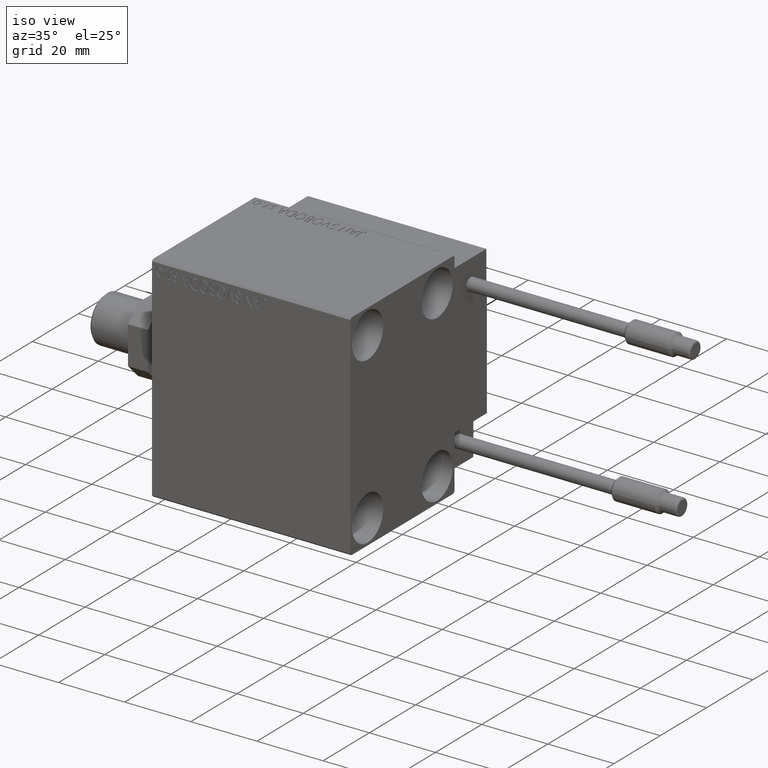
[diagram: clean part render]
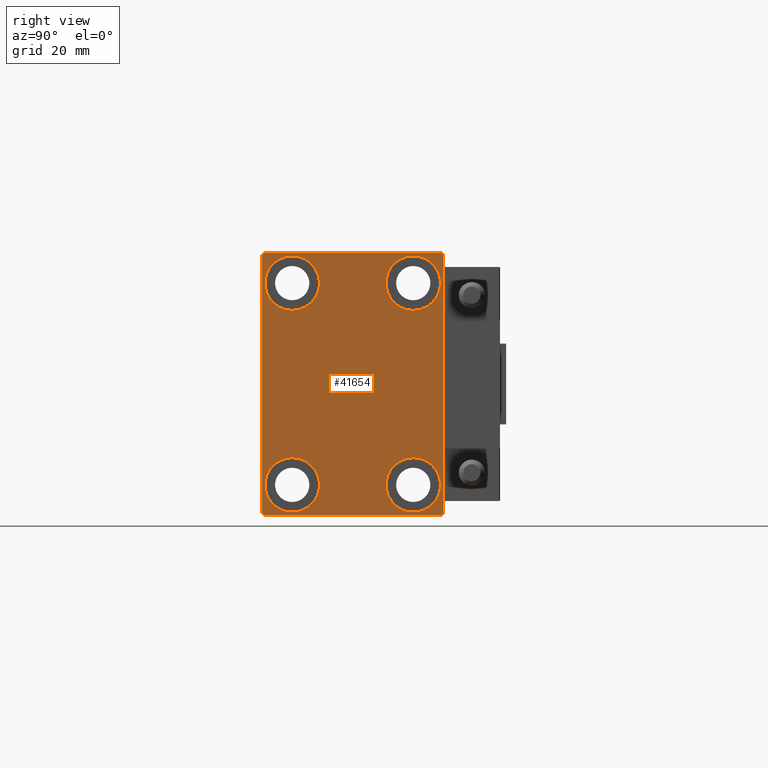
[diagram: tour spotlight — one face highlighted and labeled with its STEP entity id]
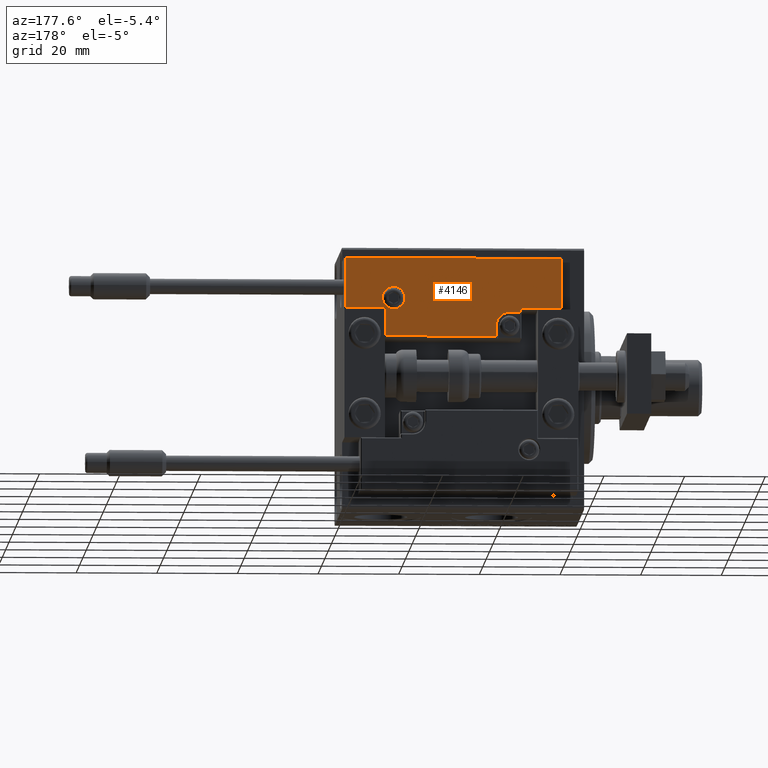
[diagram: tour spotlight — one face highlighted and labeled with its STEP entity id]
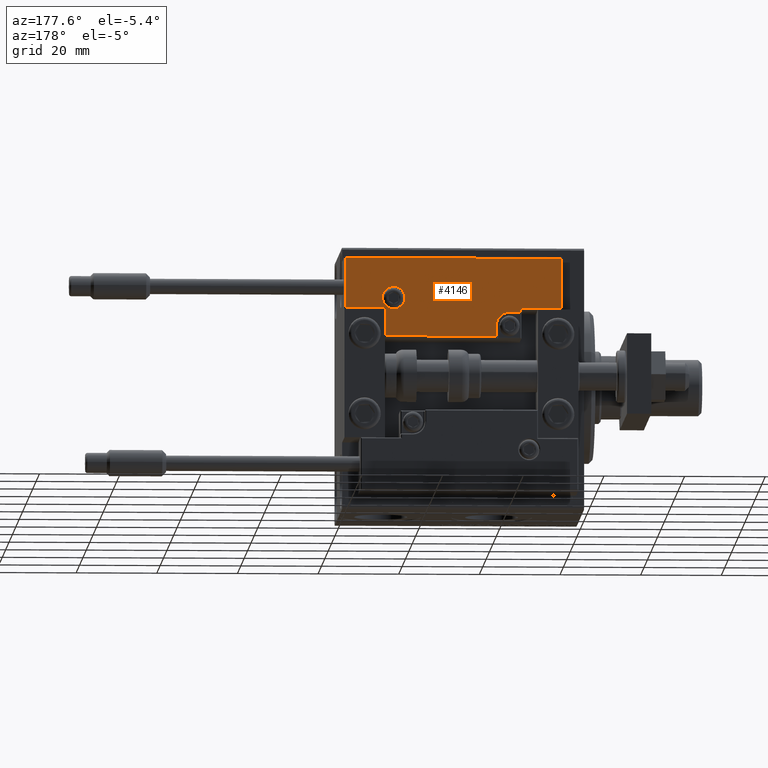
[diagram: tour spotlight — one face highlighted and labeled with its STEP entity id]
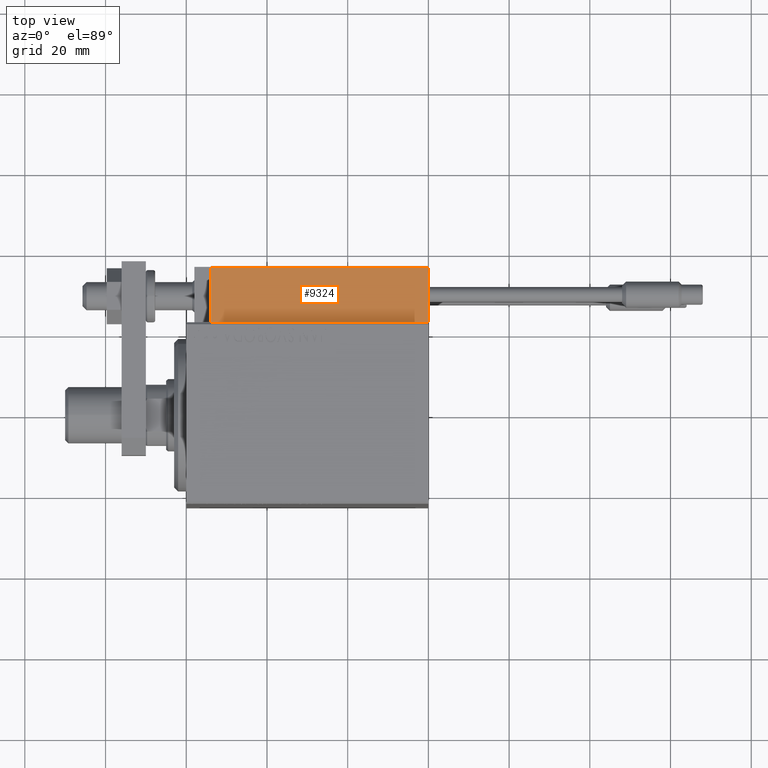
[diagram: tour spotlight — one face highlighted and labeled with its STEP entity id]
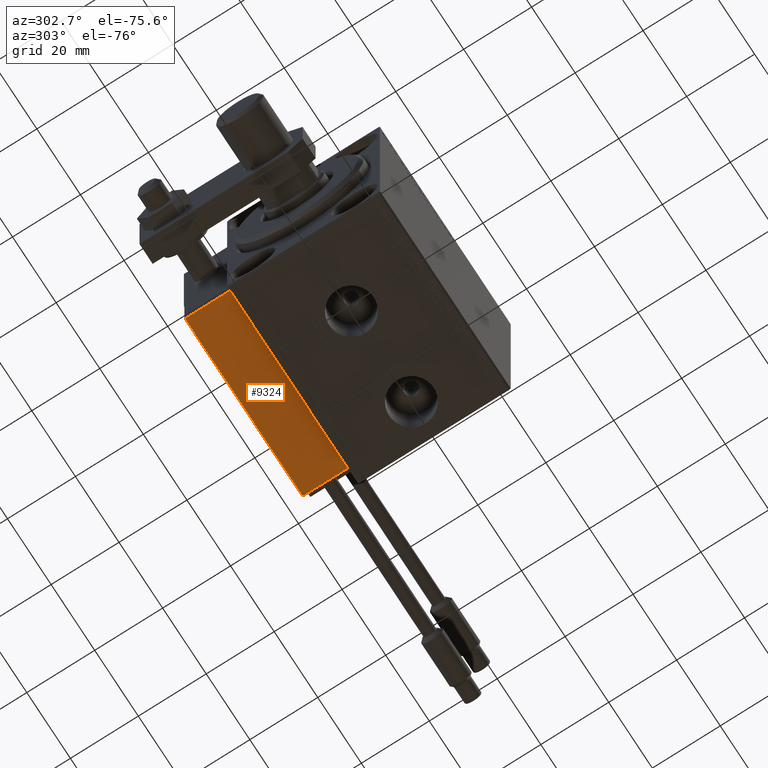
[diagram: tour spotlight — one face highlighted and labeled with its STEP entity id]
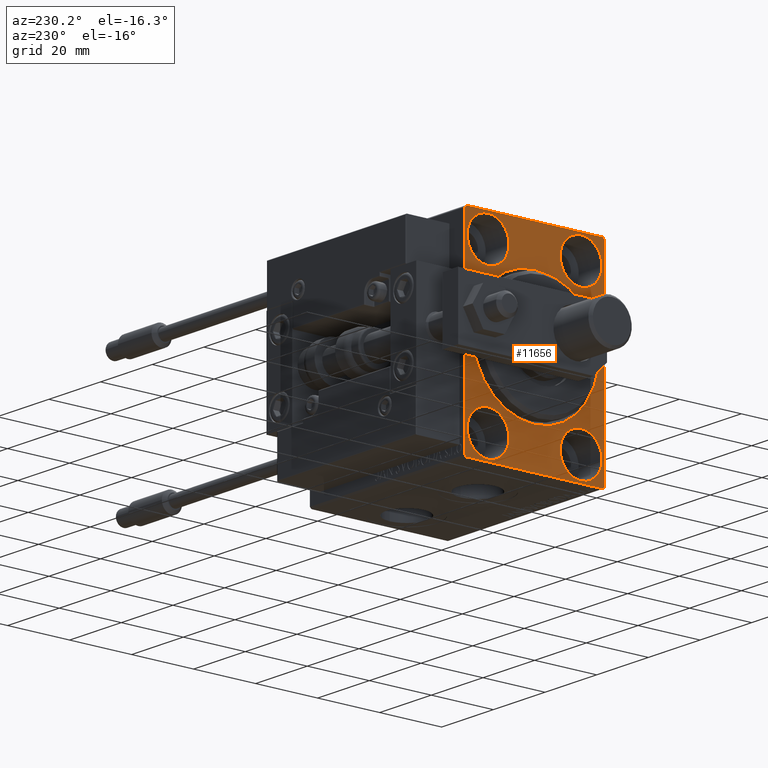
[diagram: tour spotlight — one face highlighted and labeled with its STEP entity id]
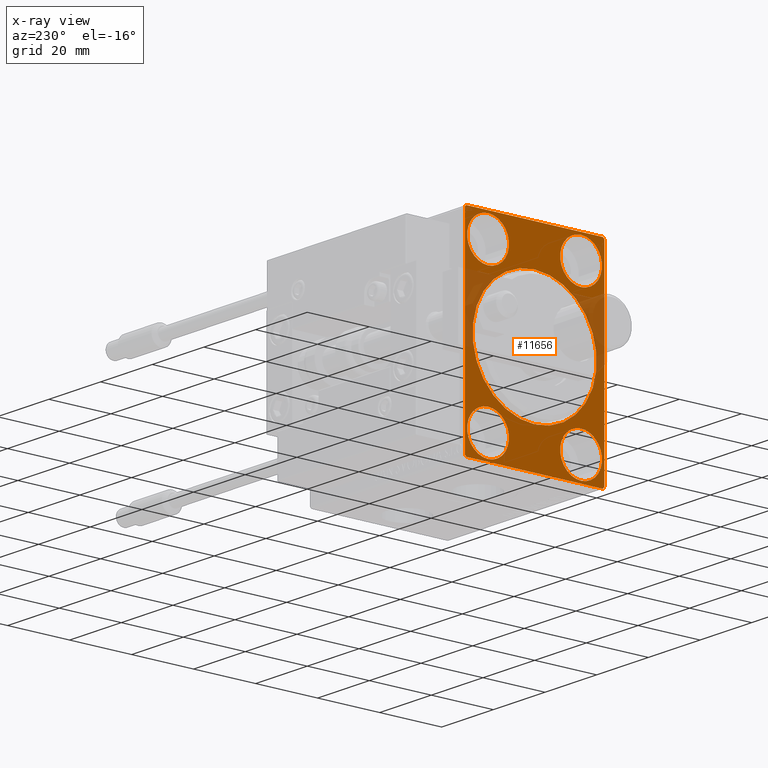
[diagram: x-ray of the same camera — body ghosted, this tour face saturated]
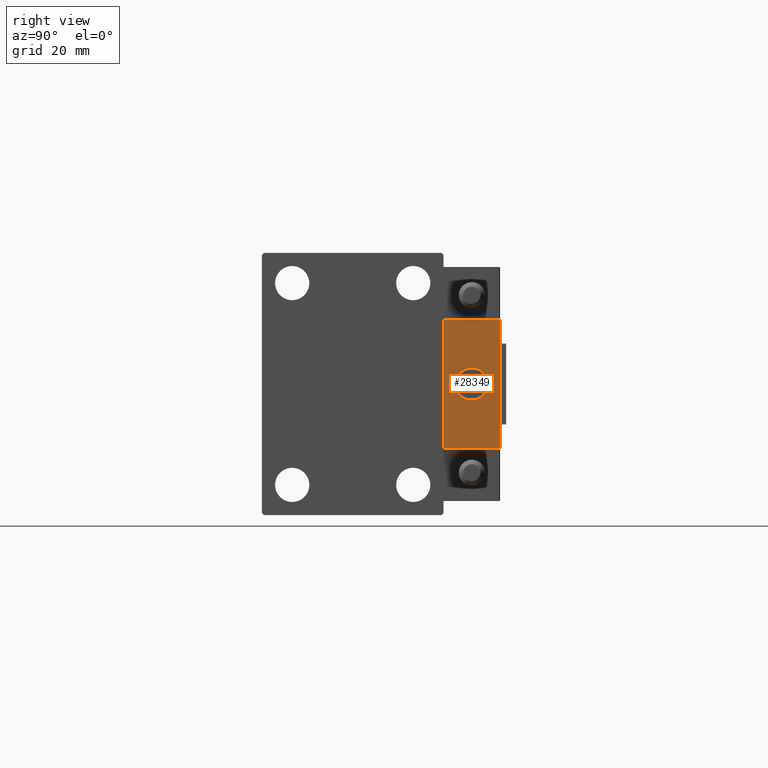
[diagram: tour spotlight — one face highlighted and labeled with its STEP entity id]
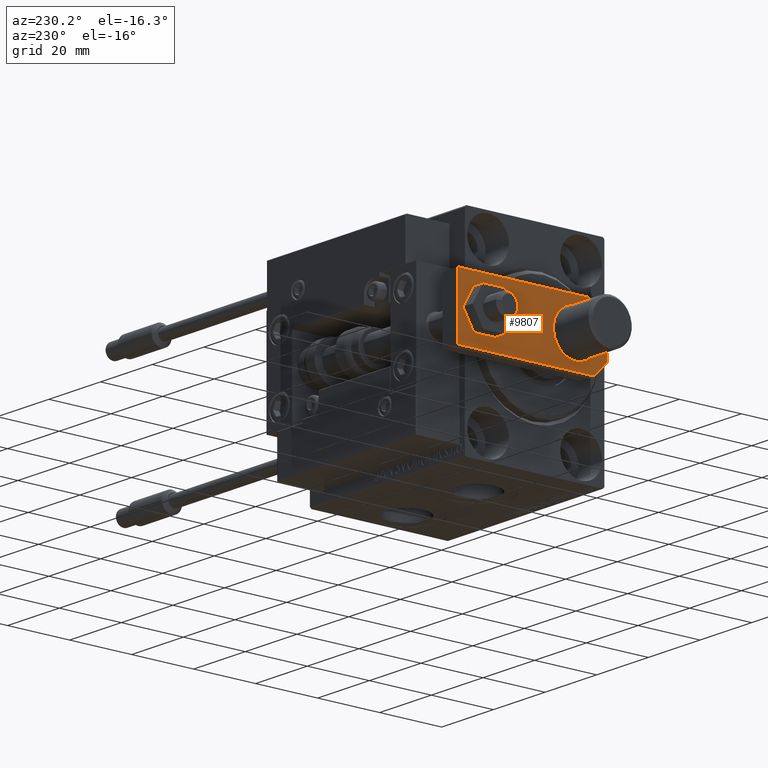
[diagram: tour spotlight — one face highlighted and labeled with its STEP entity id]
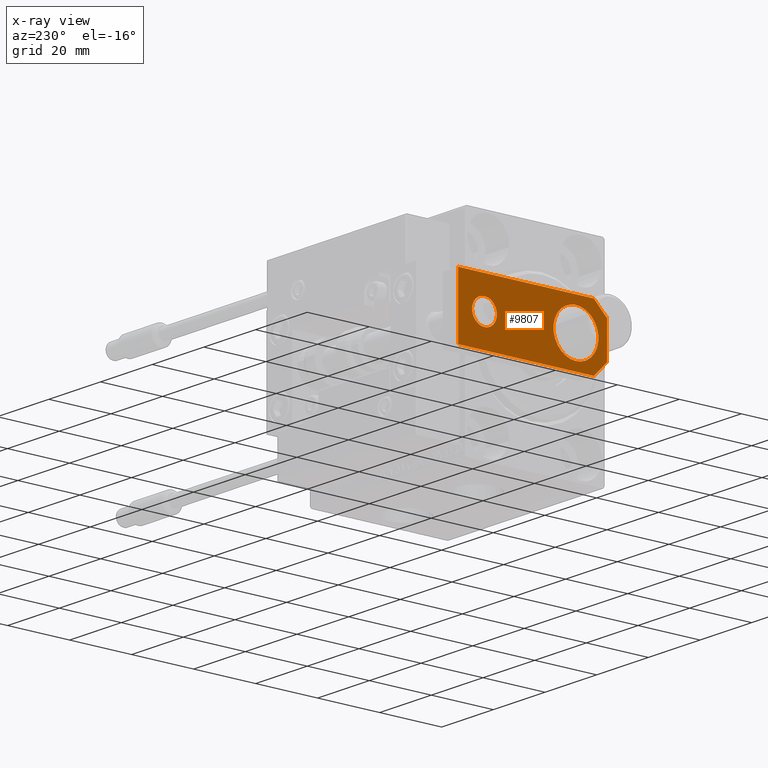
[diagram: x-ray of the same camera — body ghosted, this tour face saturated]
A machine part: a face-by-face anatomy tour. The part has 1318 B-rep faces; the first image is the clean iso view, then the 8 largest visible faces are spotlighted one at a time (largest first), each with its STEP entity span.

Face 1 — right view, entity #41654. In plain terms, the highlighted planar face has unit normal (1, 0, 0).
Definition (entity closure, byte-faithful):
#66 = DIRECTION ( 'NONE',  ( -0.000000000000000000, 0.7071067811865376918, 0.7071067811865574537 ) ) ;
#935 = CARTESIAN_POINT ( 'NONE',  ( 60.00000000000000000, 15.00000000000000355, 25.00000000000000000 ) ) ;
#1497 = CARTESIAN_POINT ( 'NONE',  ( 60.00000000000000000, 14.99999999999999645, -18.25000000000000355 ) ) ;
#1501 = CARTESIAN_POINT ( 'NONE',  ( 60.00000000000000000, -27.25000000000000000, 27.25000000000000000 ) ) ;
#1721 = CARTESIAN_POINT ( 'NONE',  ( 60.00000000000000000, 22.50000000000000000, -32.50000000000000711 ) ) ;
#1789 = DIRECTION ( 'NONE',  ( -1.000000000000000000, -0.000000000000000000, -0.000000000000000000 ) ) ;
#2645 = LINE ( 'NONE', #22538, #8430 ) ;
#2699 = CARTESIAN_POINT ( 'NONE',  ( 60.00000000000000000, -22.50000000000000711, -32.50000000000000711 ) ) ;
#2864 = EDGE_CURVE ( 'NONE', #45222, #18403, #28966, .T. ) ;
#4200 = CARTESIAN_POINT ( 'NONE',  ( 60.00000000000000000, 15.00000000000000355, 25.00000000000000000 ) ) ;
#4335 = AXIS2_PLACEMENT_3D ( 'NONE', #39829, #31062, #39570 ) ;
#4920 = CIRCLE ( 'NONE', #33811, 6.749999999999999112 ) ;
#5185 = CIRCLE ( 'NONE', #4335, 6.749999999999999112 ) ;
#5365 = EDGE_CURVE ( 'NONE', #29262, #49479, #5185, .T. ) ;
#5546 = CIRCLE ( 'NONE', #30289, 6.749999999999999112 ) ;
#7878 = DIRECTION ( 'NONE',  ( 0.000000000000000000, 0.000000000000000000, 1.000000000000000000 ) ) ;
#7897 = EDGE_CURVE ( 'NONE', #10067, #38806, #16835, .T. ) ;
#8076 = VECTOR ( 'NONE', #21138, 1000.000000000000114 ) ;
#8430 = VECTOR ( 'NONE', #33661, 1000.000000000000000 ) ;
#8554 = VECTOR ( 'NONE', #36466, 1000.000000000000000 ) ;
#9023 = ORIENTED_EDGE ( 'NONE', *, *, #24847, .T. ) ;
#9526 = CARTESIAN_POINT ( 'NONE',  ( 60.00000000000000000, -15.00000000000000355, -31.75000000000000000 ) ) ;
#10067 = VERTEX_POINT ( 'NONE', #17874 ) ;
#11206 = VECTOR ( 'NONE', #11955, 999.9999999999998863 ) ;
#11323 = AXIS2_PLACEMENT_3D ( 'NONE', #36939, #1789, #44434 ) ;
#11611 = ORIENTED_EDGE ( 'NONE', *, *, #19442, .T. ) ;
#11731 = CARTESIAN_POINT ( 'NONE',  ( 60.00000000000000000, 15.00000000000000355, 31.75000000000000000 ) ) ;
#11743 = DIRECTION ( 'NONE',  ( -1.000000000000000000, -0.000000000000000000, -0.000000000000000000 ) ) ;
#11955 = DIRECTION ( 'NONE',  ( -0.000000000000000000, -0.7071067811865425767, 0.7071067811865525687 ) ) ;
#12192 = VERTEX_POINT ( 'NONE', #36288 ) ;
#12881 = VERTEX_POINT ( 'NONE', #27400 ) ;
#13527 = CARTESIAN_POINT ( 'NONE',  ( 60.00000000000000000, -21.99999999999999289, 32.49999999999999289 ) ) ;
#14446 = VECTOR ( 'NONE', #66, 999.9999999999998863 ) ;
#14616 = CARTESIAN_POINT ( 'NONE',  ( 60.00000000000000000, -14.99999999999999645, 25.00000000000000000 ) ) ;
#16835 = LINE ( 'NONE', #40351, #8554 ) ;
#16945 = EDGE_CURVE ( 'NONE', #12192, #10067, #32618, .T. ) ;
#16959 = CARTESIAN_POINT ( 'NONE',  ( 60.00000000000000000, 21.99999999999998579, -32.50000000000000711 ) ) ;
#17348 = VERTEX_POINT ( 'NONE', #25321 ) ;
#17640 = ORIENTED_EDGE ( 'NONE', *, *, #24397, .T. ) ;
#17836 = FACE_BOUND ( 'NONE', #45384, .T. ) ;
#17874 = CARTESIAN_POINT ( 'NONE',  ( 60.00000000000000000, 21.99999999999999289, 32.50000000000000000 ) ) ;
#18403 = VERTEX_POINT ( 'NONE', #24498 ) ;
#18538 = EDGE_LOOP ( 'NONE', ( #25346, #28140 ) ) ;
#18853 = ORIENTED_EDGE ( 'NONE', *, *, #36944, .T. ) ;
#19442 = EDGE_CURVE ( 'NONE', #18403, #45222, #5546, .T. ) ;
#19491 = VERTEX_POINT ( 'NONE', #16959 ) ;
#20015 = CARTESIAN_POINT ( 'NONE',  ( 60.00000000000000000, -15.00000000000000355, -25.00000000000000000 ) ) ;
#20778 = AXIS2_PLACEMENT_3D ( 'NONE', #21710, #37211, #22213 ) ;
#20916 = VERTEX_POINT ( 'NONE', #36164 ) ;
#21138 = DIRECTION ( 'NONE',  ( 0.000000000000000000, -0.7071067811865474617, -0.7071067811865474617 ) ) ;
#21276 = EDGE_CURVE ( 'NONE', #12881, #12192, #44372, .T. ) ;
#21710 = CARTESIAN_POINT ( 'NONE',  ( 60.00000000000000000, 0.000000000000000000, 0.000000000000000000 ) ) ;
#21712 = ORIENTED_EDGE ( 'NONE', *, *, #7897, .T. ) ;
#21870 = ORIENTED_EDGE ( 'NONE', *, *, #49400, .T. ) ;
#22193 = CIRCLE ( 'NONE', #30413, 6.749999999999999112 ) ;
#22206 = DIRECTION ( 'NONE',  ( 0.000000000000000000, 0.000000000000000000, 1.000000000000000000 ) ) ;
#22213 = DIRECTION ( 'NONE',  ( 0.000000000000000000, 0.000000000000000000, -1.000000000000000000 ) ) ;
#22538 = CARTESIAN_POINT ( 'NONE',  ( 60.00000000000000000, -22.50000000000000711, 32.49999999999999289 ) ) ;
#22785 = DIRECTION ( 'NONE',  ( -0.000000000000000000, 0.7071067811865378028, -0.7071067811865573427 ) ) ;
#23207 = ORIENTED_EDGE ( 'NONE', *, *, #2864, .T. ) ;
#23454 = EDGE_CURVE ( 'NONE', #37009, #33739, #32882, .T. ) ;
#23709 = CIRCLE ( 'NONE', #11323, 6.749999999999999112 ) ;
#24397 = EDGE_CURVE ( 'NONE', #27177, #19491, #38094, .T. ) ;
#24498 = CARTESIAN_POINT ( 'NONE',  ( 60.00000000000000000, 15.00000000000000355, 18.25000000000000355 ) ) ;
#24847 = EDGE_CURVE ( 'NONE', #38806, #20916, #36902, .T. ) ;
#24879 = CARTESIAN_POINT ( 'NONE',  ( 60.00000000000000000, -14.99999999999999645, 31.75000000000000000 ) ) ;
#25321 = CARTESIAN_POINT ( 'NONE',  ( 60.00000000000000000, -22.50000000000000711, -32.00000000000000711 ) ) ;
#25346 = ORIENTED_EDGE ( 'NONE', *, *, #50819, .T. ) ;
#27153 = CARTESIAN_POINT ( 'NONE',  ( 60.00000000000000000, -22.00000000000002132, -32.50000000000000711 ) ) ;
#27177 = VERTEX_POINT ( 'NONE', #27153 ) ;
#27400 = CARTESIAN_POINT ( 'NONE',  ( 60.00000000000000000, 22.50000000000000000, -31.99999999999999289 ) ) ;
#28140 = ORIENTED_EDGE ( 'NONE', *, *, #23454, .T. ) ;
#28485 = LINE ( 'NONE', #39860, #14446 ) ;
#28779 = DIRECTION ( 'NONE',  ( 0.000000000000000000, 0.000000000000000000, 1.000000000000000000 ) ) ;
#28966 = CIRCLE ( 'NONE', #37242, 6.749999999999999112 ) ;
#29262 = VERTEX_POINT ( 'NONE', #24879 ) ;
#30215 = PLANE ( 'NONE',  #20778 ) ;
#30289 = AXIS2_PLACEMENT_3D ( 'NONE', #935, #36595, #47948 ) ;
#30365 = DIRECTION ( 'NONE',  ( -1.000000000000000000, -0.000000000000000000, -0.000000000000000000 ) ) ;
#30413 = AXIS2_PLACEMENT_3D ( 'NONE', #20015, #48159, #28779 ) ;
#30917 = EDGE_CURVE ( 'NONE', #33054, #43602, #22193, .T. ) ;
#31062 = DIRECTION ( 'NONE',  ( -1.000000000000000000, -0.000000000000000000, -0.000000000000000000 ) ) ;
#31586 = CIRCLE ( 'NONE', #38199, 6.749999999999999112 ) ;
#31852 = DIRECTION ( 'NONE',  ( -1.000000000000000000, -0.000000000000000000, -0.000000000000000000 ) ) ;
#32618 = LINE ( 'NONE', #36231, #11206 ) ;
#32882 = CIRCLE ( 'NONE', #41953, 6.749999999999999112 ) ;
#33054 = VERTEX_POINT ( 'NONE', #9526 ) ;
#33635 = CARTESIAN_POINT ( 'NONE',  ( 60.00000000000000000, -14.99999999999999645, 18.25000000000000355 ) ) ;
#33661 = DIRECTION ( 'NONE',  ( 0.000000000000000000, 0.000000000000000000, -1.000000000000000000 ) ) ;
#33739 = VERTEX_POINT ( 'NONE', #35959 ) ;
#33811 = AXIS2_PLACEMENT_3D ( 'NONE', #14616, #30365, #46125 ) ;
#34020 = EDGE_CURVE ( 'NONE', #49479, #29262, #4920, .T. ) ;
#34022 = EDGE_LOOP ( 'NONE', ( #21712, #9023, #37575, #18853, #17640, #21870, #47829, #50202 ) ) ;
#34477 = VECTOR ( 'NONE', #44619, 1000.000000000000000 ) ;
#34720 = EDGE_LOOP ( 'NONE', ( #11611, #23207 ) ) ;
#35322 = EDGE_LOOP ( 'NONE', ( #46434, #48683 ) ) ;
#35959 = CARTESIAN_POINT ( 'NONE',  ( 60.00000000000000000, 14.99999999999999645, -31.75000000000000000 ) ) ;
#36164 = CARTESIAN_POINT ( 'NONE',  ( 60.00000000000000000, -22.50000000000000711, 31.99999999999999289 ) ) ;
#36231 = CARTESIAN_POINT ( 'NONE',  ( 60.00000000000000000, 27.25000000000014921, 27.24999999999976907 ) ) ;
#36275 = CARTESIAN_POINT ( 'NONE',  ( 60.00000000000000000, 14.99999999999999645, -25.00000000000000000 ) ) ;
#36288 = CARTESIAN_POINT ( 'NONE',  ( 60.00000000000000000, 22.49999999999999289, 31.99999999999999289 ) ) ;
#36466 = DIRECTION ( 'NONE',  ( 0.000000000000000000, -1.000000000000000000, -1.541976423090495387E-16 ) ) ;
#36595 = DIRECTION ( 'NONE',  ( -1.000000000000000000, -0.000000000000000000, -0.000000000000000000 ) ) ;
#36902 = LINE ( 'NONE', #1501, #8076 ) ;
#36939 = CARTESIAN_POINT ( 'NONE',  ( 60.00000000000000000, 14.99999999999999645, -25.00000000000000000 ) ) ;
#36944 = EDGE_CURVE ( 'NONE', #17348, #27177, #39557, .T. ) ;
#37009 = VERTEX_POINT ( 'NONE', #1497 ) ;
#37211 = DIRECTION ( 'NONE',  ( 1.000000000000000000, 0.000000000000000000, 0.000000000000000000 ) ) ;
#37242 = AXIS2_PLACEMENT_3D ( 'NONE', #4200, #31852, #47600 ) ;
#37575 = ORIENTED_EDGE ( 'NONE', *, *, #42904, .T. ) ;
#37965 = DIRECTION ( 'NONE',  ( -1.000000000000000000, -0.000000000000000000, -0.000000000000000000 ) ) ;
#38094 = LINE ( 'NONE', #2699, #42086 ) ;
#38199 = AXIS2_PLACEMENT_3D ( 'NONE', #40844, #37965, #22206 ) ;
#38806 = VERTEX_POINT ( 'NONE', #13527 ) ;
#39557 = LINE ( 'NONE', #42433, #39703 ) ;
#39570 = DIRECTION ( 'NONE',  ( 0.000000000000000000, 0.000000000000000000, 1.000000000000000000 ) ) ;
#39703 = VECTOR ( 'NONE', #22785, 1000.000000000000000 ) ;
#39829 = CARTESIAN_POINT ( 'NONE',  ( 60.00000000000000000, -14.99999999999999645, 25.00000000000000000 ) ) ;
#39860 = CARTESIAN_POINT ( 'NONE',  ( 60.00000000000000000, 27.25000000000030553, -27.24999999999954881 ) ) ;
#40351 = CARTESIAN_POINT ( 'NONE',  ( 60.00000000000000000, 22.49999999999999289, 32.50000000000000000 ) ) ;
#40727 = EDGE_CURVE ( 'NONE', #43602, #33054, #31586, .T. ) ;
#40844 = CARTESIAN_POINT ( 'NONE',  ( 60.00000000000000000, -15.00000000000000355, -25.00000000000000000 ) ) ;
#41099 = FACE_BOUND ( 'NONE', #18538, .T. ) ;
#41654 = ADVANCED_FACE ( 'NONE', ( #41099, #45973, #45725, #17836, #45462 ), #30215, .T. ) ;
#41953 = AXIS2_PLACEMENT_3D ( 'NONE', #36275, #11743, #7878 ) ;
#42086 = VECTOR ( 'NONE', #45846, 1000.000000000000000 ) ;
#42433 = CARTESIAN_POINT ( 'NONE',  ( 60.00000000000000000, -27.25000000000032330, -27.24999999999957012 ) ) ;
#42904 = EDGE_CURVE ( 'NONE', #20916, #17348, #2645, .T. ) ;
#43602 = VERTEX_POINT ( 'NONE', #50258 ) ;
#44372 = LINE ( 'NONE', #1721, #34477 ) ;
#44434 = DIRECTION ( 'NONE',  ( 0.000000000000000000, 0.000000000000000000, 1.000000000000000000 ) ) ;
#44619 = DIRECTION ( 'NONE',  ( 0.000000000000000000, -1.067522139062650425E-16, 1.000000000000000000 ) ) ;
#45222 = VERTEX_POINT ( 'NONE', #11731 ) ;
#45384 = EDGE_LOOP ( 'NONE', ( #45912, #46472 ) ) ;
#45462 = FACE_OUTER_BOUND ( 'NONE', #34022, .T. ) ;
#45725 = FACE_BOUND ( 'NONE', #34720, .T. ) ;
#45846 = DIRECTION ( 'NONE',  ( 0.000000000000000000, 1.000000000000000000, 0.000000000000000000 ) ) ;
#45912 = ORIENTED_EDGE ( 'NONE', *, *, #30917, .T. ) ;
#45973 = FACE_BOUND ( 'NONE', #35322, .T. ) ;
#46125 = DIRECTION ( 'NONE',  ( 0.000000000000000000, 0.000000000000000000, 1.000000000000000000 ) ) ;
#46434 = ORIENTED_EDGE ( 'NONE', *, *, #34020, .T. ) ;
#46472 = ORIENTED_EDGE ( 'NONE', *, *, #40727, .T. ) ;
#47600 = DIRECTION ( 'NONE',  ( 0.000000000000000000, 0.000000000000000000, 1.000000000000000000 ) ) ;
#47829 = ORIENTED_EDGE ( 'NONE', *, *, #21276, .T. ) ;
#47948 = DIRECTION ( 'NONE',  ( 0.000000000000000000, 0.000000000000000000, 1.000000000000000000 ) ) ;
#48159 = DIRECTION ( 'NONE',  ( -1.000000000000000000, -0.000000000000000000, -0.000000000000000000 ) ) ;
#48683 = ORIENTED_EDGE ( 'NONE', *, *, #5365, .T. ) ;
#49400 = EDGE_CURVE ( 'NONE', #19491, #12881, #28485, .T. ) ;
#49479 = VERTEX_POINT ( 'NONE', #33635 ) ;
#50202 = ORIENTED_EDGE ( 'NONE', *, *, #16945, .T. ) ;
#50258 = CARTESIAN_POINT ( 'NONE',  ( 60.00000000000000000, -15.00000000000000355, -18.25000000000000355 ) ) ;
#50819 = EDGE_CURVE ( 'NONE', #33739, #37009, #23709, .T. ) ;

Face 2 — auxiliary view, entity #4146. In plain terms, the highlighted planar face has unit normal (-0, 1, -0).
Definition (entity closure, byte-faithful):
#179 = EDGE_CURVE ( 'NONE', #18113, #33426, #19037, .T. ) ;
#320 = AXIS2_PLACEMENT_3D ( 'NONE', #46952, #39708, #7189 ) ;
#794 = VERTEX_POINT ( 'NONE', #7110 ) ;
#1558 = EDGE_CURVE ( 'NONE', #794, #43433, #29654, .T. ) ;
#2564 = CIRCLE ( 'NONE', #9164, 2.800000000000000266 ) ;
#2780 = ORIENTED_EDGE ( 'NONE', *, *, #32087, .T. ) ;
#2923 = EDGE_CURVE ( 'NONE', #26091, #9703, #14004, .T. ) ;
#3462 = CARTESIAN_POINT ( 'NONE',  ( 13.99999999999999822, 6.300000000000001599, 14.00000000000000000 ) ) ;
#3468 = VERTEX_POINT ( 'NONE', #8099 ) ;
#3528 = VERTEX_POINT ( 'NONE', #7598 ) ;
#3703 = EDGE_CURVE ( 'NONE', #3528, #47382, #47860, .T. ) ;
#4017 = VERTEX_POINT ( 'NONE', #23286 ) ;
#4146 = ADVANCED_FACE ( 'NONE', ( #37207, #41604 ), #45721, .T. ) ;
#4466 = DIRECTION ( 'NONE',  ( -0.000000000000000000, 1.000000000000000000, -0.000000000000000000 ) ) ;
#4493 = CARTESIAN_POINT ( 'NONE',  ( -17.59999999999994813, 9.800000000000004263, 14.00000000000000000 ) ) ;
#5281 = DIRECTION ( 'NONE',  ( -8.006416042969869188E-16, -1.000000000000000000, 0.000000000000000000 ) ) ;
#5322 = CARTESIAN_POINT ( 'NONE',  ( -26.69999999999994600, 7.300000000000005151, 14.00000000000000000 ) ) ;
#5711 = ORIENTED_EDGE ( 'NONE', *, *, #1558, .T. ) ;
#5904 = CARTESIAN_POINT ( 'NONE',  ( 16.69999999999999929, 7.300000000000009592, 14.00000000000000000 ) ) ;
#7110 = CARTESIAN_POINT ( 'NONE',  ( 26.70000000000006324, 19.70000000000001705, 14.00000000000000000 ) ) ;
#7189 = DIRECTION ( 'NONE',  ( 1.000000000000000000, 0.000000000000000000, 0.000000000000000000 ) ) ;
#7442 = CARTESIAN_POINT ( 'NONE',  ( 26.70000000000006324, 20.00000000000001776, 14.00000000000000000 ) ) ;
#7598 = CARTESIAN_POINT ( 'NONE',  ( 10.69999999999999929, 0.3000000000000032085, 14.00000000000000000 ) ) ;
#8099 = CARTESIAN_POINT ( 'NONE',  ( -16.69999999999999218, 0.3000000000000032085, 14.00000000000000000 ) ) ;
#8457 = VERTEX_POINT ( 'NONE', #5904 ) ;
#8551 = EDGE_CURVE ( 'NONE', #47382, #37517, #35807, .T. ) ;
#8565 = EDGE_CURVE ( 'NONE', #4017, #794, #19069, .T. ) ;
#9164 = AXIS2_PLACEMENT_3D ( 'NONE', #37773, #49407, #29760 ) ;
#9703 = VERTEX_POINT ( 'NONE', #32157 ) ;
#11053 = CARTESIAN_POINT ( 'NONE',  ( -26.99999999999993605, 19.70000000000002061, 14.00000000000000000 ) ) ;
#11845 = ORIENTED_EDGE ( 'NONE', *, *, #13581, .T. ) ;
#12410 = EDGE_LOOP ( 'NONE', ( #44254, #14238 ) ) ;
#12474 = CARTESIAN_POINT ( 'NONE',  ( 10.69999999999999929, 3.000000000000003109, 14.00000000000000000 ) ) ;
#13030 = CARTESIAN_POINT ( 'NONE',  ( -26.69999999999994600, 7.000000000000005329, 14.00000000000000000 ) ) ;
#13270 = VECTOR ( 'NONE', #14672, 1000.000000000000000 ) ;
#13581 = EDGE_CURVE ( 'NONE', #8457, #4017, #41391, .T. ) ;
#13956 = CARTESIAN_POINT ( 'NONE',  ( 0.000000000000000000, 0.000000000000000000, 14.00000000000000000 ) ) ;
#14004 = LINE ( 'NONE', #14262, #25702 ) ;
#14238 = ORIENTED_EDGE ( 'NONE', *, *, #36805, .T. ) ;
#14262 = CARTESIAN_POINT ( 'NONE',  ( -16.99999999999999289, 7.300000000000003375, 14.00000000000000000 ) ) ;
#14672 = DIRECTION ( 'NONE',  ( -1.000000000000000000, 6.424901762877063495E-17, -0.000000000000000000 ) ) ;
#15783 = EDGE_LOOP ( 'NONE', ( #20687, #34547, #20879, #33316, #39108, #35138, #11845, #31730, #5711, #2780, #19644 ) ) ;
#15788 = DIRECTION ( 'NONE',  ( 0.000000000000000000, -0.000000000000000000, -1.000000000000000000 ) ) ;
#17049 = CARTESIAN_POINT ( 'NONE',  ( -11.99999999999994849, 9.800000000000004263, 14.00000000000000000 ) ) ;
#18113 = VERTEX_POINT ( 'NONE', #17049 ) ;
#19037 = CIRCLE ( 'NONE', #38832, 2.800000000000000266 ) ;
#19069 = LINE ( 'NONE', #7442, #48189 ) ;
#19142 = VECTOR ( 'NONE', #4466, 1000.000000000000000 ) ;
#19432 = DIRECTION ( 'NONE',  ( 1.000000000000000000, 0.000000000000000000, 0.000000000000000000 ) ) ;
#19644 = ORIENTED_EDGE ( 'NONE', *, *, #2923, .T. ) ;
#20149 = CARTESIAN_POINT ( 'NONE',  ( 11.00000000000000000, 0.3000000000000032085, 14.00000000000000000 ) ) ;
#20687 = ORIENTED_EDGE ( 'NONE', *, *, #21631, .T. ) ;
#20868 = EDGE_CURVE ( 'NONE', #3468, #3528, #43661, .T. ) ;
#20879 = ORIENTED_EDGE ( 'NONE', *, *, #3703, .T. ) ;
#21163 = CARTESIAN_POINT ( 'NONE',  ( 16.69999999999999929, 7.000000000000009770, 14.00000000000000000 ) ) ;
#21631 = EDGE_CURVE ( 'NONE', #9703, #3468, #32454, .T. ) ;
#23286 = CARTESIAN_POINT ( 'NONE',  ( 26.70000000000006324, 7.300000000000007816, 14.00000000000000000 ) ) ;
#25086 = DIRECTION ( 'NONE',  ( -0.000000000000000000, 0.000000000000000000, 1.000000000000000000 ) ) ;
#25129 = DIRECTION ( 'NONE',  ( 1.000000000000000000, -1.734723475976796001E-16, 0.000000000000000000 ) ) ;
#25702 = VECTOR ( 'NONE', #37259, 1000.000000000000000 ) ;
#25846 = DIRECTION ( 'NONE',  ( 1.000000000000000000, 0.000000000000000000, 0.000000000000000000 ) ) ;
#25965 = VECTOR ( 'NONE', #25129, 1000.000000000000000 ) ;
#26091 = VERTEX_POINT ( 'NONE', #5322 ) ;
#27610 = VECTOR ( 'NONE', #29854, 1000.000000000000000 ) ;
#29168 = LINE ( 'NONE', #21163, #35407 ) ;
#29481 = VECTOR ( 'NONE', #35914, 1000.000000000000000 ) ;
#29606 = CARTESIAN_POINT ( 'NONE',  ( 10.69999999999999929, 3.000000000000003109, 14.00000000000000000 ) ) ;
#29654 = LINE ( 'NONE', #11053, #13270 ) ;
#29760 = DIRECTION ( 'NONE',  ( 1.000000000000000000, 0.000000000000000000, 0.000000000000000000 ) ) ;
#29854 = DIRECTION ( 'NONE',  ( 1.000000000000000000, 5.782411586589357639E-16, -0.000000000000000000 ) ) ;
#30483 = CARTESIAN_POINT ( 'NONE',  ( -26.69999999999993534, 19.70000000000002061, 14.00000000000000000 ) ) ;
#31358 = EDGE_CURVE ( 'NONE', #34643, #8457, #29168, .T. ) ;
#31730 = ORIENTED_EDGE ( 'NONE', *, *, #8565, .T. ) ;
#32087 = EDGE_CURVE ( 'NONE', #43433, #26091, #44304, .T. ) ;
#32157 = CARTESIAN_POINT ( 'NONE',  ( -16.69999999999999218, 7.300000000000003375, 14.00000000000000000 ) ) ;
#32454 = LINE ( 'NONE', #36321, #34515 ) ;
#33316 = ORIENTED_EDGE ( 'NONE', *, *, #8551, .T. ) ;
#33426 = VERTEX_POINT ( 'NONE', #4493 ) ;
#34515 = VECTOR ( 'NONE', #48456, 1000.000000000000000 ) ;
#34547 = ORIENTED_EDGE ( 'NONE', *, *, #20868, .T. ) ;
#34643 = VERTEX_POINT ( 'NONE', #42135 ) ;
#35138 = ORIENTED_EDGE ( 'NONE', *, *, #31358, .T. ) ;
#35407 = VECTOR ( 'NONE', #48030, 1000.000000000000000 ) ;
#35807 = CIRCLE ( 'NONE', #320, 3.299999999999997158 ) ;
#35914 = DIRECTION ( 'NONE',  ( 1.000000000000000000, -0.000000000000000000, 0.000000000000000000 ) ) ;
#36321 = CARTESIAN_POINT ( 'NONE',  ( -16.69999999999999218, 3.252606517456513302E-15, 14.00000000000000000 ) ) ;
#36805 = EDGE_CURVE ( 'NONE', #33426, #18113, #2564, .T. ) ;
#37207 = FACE_BOUND ( 'NONE', #12410, .T. ) ;
#37259 = DIRECTION ( 'NONE',  ( 1.000000000000000000, -1.734723475976815230E-16, 0.000000000000000000 ) ) ;
#37517 = VERTEX_POINT ( 'NONE', #3462 ) ;
#37773 = CARTESIAN_POINT ( 'NONE',  ( -14.79999999999994920, 9.800000000000004263, 14.00000000000000000 ) ) ;
#38832 = AXIS2_PLACEMENT_3D ( 'NONE', #43692, #15788, #19432 ) ;
#39108 = ORIENTED_EDGE ( 'NONE', *, *, #47945, .T. ) ;
#39558 = VECTOR ( 'NONE', #5281, 1000.000000000000000 ) ;
#39708 = DIRECTION ( 'NONE',  ( 0.000000000000000000, -0.000000000000000000, -1.000000000000000000 ) ) ;
#40628 = CARTESIAN_POINT ( 'NONE',  ( 27.00000000000006395, 7.300000000000007816, 14.00000000000000000 ) ) ;
#41391 = LINE ( 'NONE', #40628, #25965 ) ;
#41506 = CARTESIAN_POINT ( 'NONE',  ( 17.00000000000000000, 6.300000000000003375, 14.00000000000000000 ) ) ;
#41604 = FACE_OUTER_BOUND ( 'NONE', #15783, .T. ) ;
#42135 = CARTESIAN_POINT ( 'NONE',  ( 16.69999999999999929, 6.300000000000003375, 14.00000000000000000 ) ) ;
#43433 = VERTEX_POINT ( 'NONE', #30483 ) ;
#43661 = LINE ( 'NONE', #20149, #29481 ) ;
#43692 = CARTESIAN_POINT ( 'NONE',  ( -14.79999999999994920, 9.800000000000004263, 14.00000000000000000 ) ) ;
#43915 = AXIS2_PLACEMENT_3D ( 'NONE', #13956, #25086, #25846 ) ;
#44254 = ORIENTED_EDGE ( 'NONE', *, *, #179, .T. ) ;
#44304 = LINE ( 'NONE', #13030, #39558 ) ;
#45721 = PLANE ( 'NONE',  #43915 ) ;
#46952 = CARTESIAN_POINT ( 'NONE',  ( 13.99999999999999822, 3.000000000000002665, 14.00000000000000000 ) ) ;
#47382 = VERTEX_POINT ( 'NONE', #29606 ) ;
#47860 = LINE ( 'NONE', #12474, #19142 ) ;
#47945 = EDGE_CURVE ( 'NONE', #37517, #34643, #49500, .T. ) ;
#48030 = DIRECTION ( 'NONE',  ( 9.912705577010318647E-16, 1.000000000000000000, 0.000000000000000000 ) ) ;
#48189 = VECTOR ( 'NONE', #50582, 1000.000000000000000 ) ;
#48456 = DIRECTION ( 'NONE',  ( 0.000000000000000000, -1.000000000000000000, 0.000000000000000000 ) ) ;
#49407 = DIRECTION ( 'NONE',  ( 0.000000000000000000, -0.000000000000000000, -1.000000000000000000 ) ) ;
#49500 = LINE ( 'NONE', #41506, #27610 ) ;
#50582 = DIRECTION ( 'NONE',  ( 0.000000000000000000, 1.000000000000000000, -0.000000000000000000 ) ) ;

Face 3 — auxiliary view, entity #4146. In plain terms, the highlighted planar face has unit normal (0, 1, -0).
Definition (entity closure, byte-faithful):
#179 = EDGE_CURVE ( 'NONE', #18113, #33426, #19037, .T. ) ;
#320 = AXIS2_PLACEMENT_3D ( 'NONE', #46952, #39708, #7189 ) ;
#794 = VERTEX_POINT ( 'NONE', #7110 ) ;
#1558 = EDGE_CURVE ( 'NONE', #794, #43433, #29654, .T. ) ;
#2564 = CIRCLE ( 'NONE', #9164, 2.800000000000000266 ) ;
#2780 = ORIENTED_EDGE ( 'NONE', *, *, #32087, .T. ) ;
#2923 = EDGE_CURVE ( 'NONE', #26091, #9703, #14004, .T. ) ;
#3462 = CARTESIAN_POINT ( 'NONE',  ( 13.99999999999999822, 6.300000000000001599, 14.00000000000000000 ) ) ;
#3468 = VERTEX_POINT ( 'NONE', #8099 ) ;
#3528 = VERTEX_POINT ( 'NONE', #7598 ) ;
#3703 = EDGE_CURVE ( 'NONE', #3528, #47382, #47860, .T. ) ;
#4017 = VERTEX_POINT ( 'NONE', #23286 ) ;
#4146 = ADVANCED_FACE ( 'NONE', ( #37207, #41604 ), #45721, .T. ) ;
#4466 = DIRECTION ( 'NONE',  ( -0.000000000000000000, 1.000000000000000000, -0.000000000000000000 ) ) ;
#4493 = CARTESIAN_POINT ( 'NONE',  ( -17.59999999999994813, 9.800000000000004263, 14.00000000000000000 ) ) ;
#5281 = DIRECTION ( 'NONE',  ( -8.006416042969869188E-16, -1.000000000000000000, 0.000000000000000000 ) ) ;
#5322 = CARTESIAN_POINT ( 'NONE',  ( -26.69999999999994600, 7.300000000000005151, 14.00000000000000000 ) ) ;
#5711 = ORIENTED_EDGE ( 'NONE', *, *, #1558, .T. ) ;
#5904 = CARTESIAN_POINT ( 'NONE',  ( 16.69999999999999929, 7.300000000000009592, 14.00000000000000000 ) ) ;
#7110 = CARTESIAN_POINT ( 'NONE',  ( 26.70000000000006324, 19.70000000000001705, 14.00000000000000000 ) ) ;
#7189 = DIRECTION ( 'NONE',  ( 1.000000000000000000, 0.000000000000000000, 0.000000000000000000 ) ) ;
#7442 = CARTESIAN_POINT ( 'NONE',  ( 26.70000000000006324, 20.00000000000001776, 14.00000000000000000 ) ) ;
#7598 = CARTESIAN_POINT ( 'NONE',  ( 10.69999999999999929, 0.3000000000000032085, 14.00000000000000000 ) ) ;
#8099 = CARTESIAN_POINT ( 'NONE',  ( -16.69999999999999218, 0.3000000000000032085, 14.00000000000000000 ) ) ;
#8457 = VERTEX_POINT ( 'NONE', #5904 ) ;
#8551 = EDGE_CURVE ( 'NONE', #47382, #37517, #35807, .T. ) ;
#8565 = EDGE_CURVE ( 'NONE', #4017, #794, #19069, .T. ) ;
#9164 = AXIS2_PLACEMENT_3D ( 'NONE', #37773, #49407, #29760 ) ;
#9703 = VERTEX_POINT ( 'NONE', #32157 ) ;
#11053 = CARTESIAN_POINT ( 'NONE',  ( -26.99999999999993605, 19.70000000000002061, 14.00000000000000000 ) ) ;
#11845 = ORIENTED_EDGE ( 'NONE', *, *, #13581, .T. ) ;
#12410 = EDGE_LOOP ( 'NONE', ( #44254, #14238 ) ) ;
#12474 = CARTESIAN_POINT ( 'NONE',  ( 10.69999999999999929, 3.000000000000003109, 14.00000000000000000 ) ) ;
#13030 = CARTESIAN_POINT ( 'NONE',  ( -26.69999999999994600, 7.000000000000005329, 14.00000000000000000 ) ) ;
#13270 = VECTOR ( 'NONE', #14672, 1000.000000000000000 ) ;
#13581 = EDGE_CURVE ( 'NONE', #8457, #4017, #41391, .T. ) ;
#13956 = CARTESIAN_POINT ( 'NONE',  ( 0.000000000000000000, 0.000000000000000000, 14.00000000000000000 ) ) ;
#14004 = LINE ( 'NONE', #14262, #25702 ) ;
#14238 = ORIENTED_EDGE ( 'NONE', *, *, #36805, .T. ) ;
#14262 = CARTESIAN_POINT ( 'NONE',  ( -16.99999999999999289, 7.300000000000003375, 14.00000000000000000 ) ) ;
#14672 = DIRECTION ( 'NONE',  ( -1.000000000000000000, 6.424901762877063495E-17, -0.000000000000000000 ) ) ;
#15783 = EDGE_LOOP ( 'NONE', ( #20687, #34547, #20879, #33316, #39108, #35138, #11845, #31730, #5711, #2780, #19644 ) ) ;
#15788 = DIRECTION ( 'NONE',  ( 0.000000000000000000, -0.000000000000000000, -1.000000000000000000 ) ) ;
#17049 = CARTESIAN_POINT ( 'NONE',  ( -11.99999999999994849, 9.800000000000004263, 14.00000000000000000 ) ) ;
#18113 = VERTEX_POINT ( 'NONE', #17049 ) ;
#19037 = CIRCLE ( 'NONE', #38832, 2.800000000000000266 ) ;
#19069 = LINE ( 'NONE', #7442, #48189 ) ;
#19142 = VECTOR ( 'NONE', #4466, 1000.000000000000000 ) ;
#19432 = DIRECTION ( 'NONE',  ( 1.000000000000000000, 0.000000000000000000, 0.000000000000000000 ) ) ;
#19644 = ORIENTED_EDGE ( 'NONE', *, *, #2923, .T. ) ;
#20149 = CARTESIAN_POINT ( 'NONE',  ( 11.00000000000000000, 0.3000000000000032085, 14.00000000000000000 ) ) ;
#20687 = ORIENTED_EDGE ( 'NONE', *, *, #21631, .T. ) ;
#20868 = EDGE_CURVE ( 'NONE', #3468, #3528, #43661, .T. ) ;
#20879 = ORIENTED_EDGE ( 'NONE', *, *, #3703, .T. ) ;
#21163 = CARTESIAN_POINT ( 'NONE',  ( 16.69999999999999929, 7.000000000000009770, 14.00000000000000000 ) ) ;
#21631 = EDGE_CURVE ( 'NONE', #9703, #3468, #32454, .T. ) ;
#23286 = CARTESIAN_POINT ( 'NONE',  ( 26.70000000000006324, 7.300000000000007816, 14.00000000000000000 ) ) ;
#25086 = DIRECTION ( 'NONE',  ( -0.000000000000000000, 0.000000000000000000, 1.000000000000000000 ) ) ;
#25129 = DIRECTION ( 'NONE',  ( 1.000000000000000000, -1.734723475976796001E-16, 0.000000000000000000 ) ) ;
#25702 = VECTOR ( 'NONE', #37259, 1000.000000000000000 ) ;
#25846 = DIRECTION ( 'NONE',  ( 1.000000000000000000, 0.000000000000000000, 0.000000000000000000 ) ) ;
#25965 = VECTOR ( 'NONE', #25129, 1000.000000000000000 ) ;
#26091 = VERTEX_POINT ( 'NONE', #5322 ) ;
#27610 = VECTOR ( 'NONE', #29854, 1000.000000000000000 ) ;
#29168 = LINE ( 'NONE', #21163, #35407 ) ;
#29481 = VECTOR ( 'NONE', #35914, 1000.000000000000000 ) ;
#29606 = CARTESIAN_POINT ( 'NONE',  ( 10.69999999999999929, 3.000000000000003109, 14.00000000000000000 ) ) ;
#29654 = LINE ( 'NONE', #11053, #13270 ) ;
#29760 = DIRECTION ( 'NONE',  ( 1.000000000000000000, 0.000000000000000000, 0.000000000000000000 ) ) ;
#29854 = DIRECTION ( 'NONE',  ( 1.000000000000000000, 5.782411586589357639E-16, -0.000000000000000000 ) ) ;
#30483 = CARTESIAN_POINT ( 'NONE',  ( -26.69999999999993534, 19.70000000000002061, 14.00000000000000000 ) ) ;
#31358 = EDGE_CURVE ( 'NONE', #34643, #8457, #29168, .T. ) ;
#31730 = ORIENTED_EDGE ( 'NONE', *, *, #8565, .T. ) ;
#32087 = EDGE_CURVE ( 'NONE', #43433, #26091, #44304, .T. ) ;
#32157 = CARTESIAN_POINT ( 'NONE',  ( -16.69999999999999218, 7.300000000000003375, 14.00000000000000000 ) ) ;
#32454 = LINE ( 'NONE', #36321, #34515 ) ;
#33316 = ORIENTED_EDGE ( 'NONE', *, *, #8551, .T. ) ;
#33426 = VERTEX_POINT ( 'NONE', #4493 ) ;
#34515 = VECTOR ( 'NONE', #48456, 1000.000000000000000 ) ;
#34547 = ORIENTED_EDGE ( 'NONE', *, *, #20868, .T. ) ;
#34643 = VERTEX_POINT ( 'NONE', #42135 ) ;
#35138 = ORIENTED_EDGE ( 'NONE', *, *, #31358, .T. ) ;
#35407 = VECTOR ( 'NONE', #48030, 1000.000000000000000 ) ;
#35807 = CIRCLE ( 'NONE', #320, 3.299999999999997158 ) ;
#35914 = DIRECTION ( 'NONE',  ( 1.000000000000000000, -0.000000000000000000, 0.000000000000000000 ) ) ;
#36321 = CARTESIAN_POINT ( 'NONE',  ( -16.69999999999999218, 3.252606517456513302E-15, 14.00000000000000000 ) ) ;
#36805 = EDGE_CURVE ( 'NONE', #33426, #18113, #2564, .T. ) ;
#37207 = FACE_BOUND ( 'NONE', #12410, .T. ) ;
#37259 = DIRECTION ( 'NONE',  ( 1.000000000000000000, -1.734723475976815230E-16, 0.000000000000000000 ) ) ;
#37517 = VERTEX_POINT ( 'NONE', #3462 ) ;
#37773 = CARTESIAN_POINT ( 'NONE',  ( -14.79999999999994920, 9.800000000000004263, 14.00000000000000000 ) ) ;
#38832 = AXIS2_PLACEMENT_3D ( 'NONE', #43692, #15788, #19432 ) ;
#39108 = ORIENTED_EDGE ( 'NONE', *, *, #47945, .T. ) ;
#39558 = VECTOR ( 'NONE', #5281, 1000.000000000000000 ) ;
#39708 = DIRECTION ( 'NONE',  ( 0.000000000000000000, -0.000000000000000000, -1.000000000000000000 ) ) ;
#40628 = CARTESIAN_POINT ( 'NONE',  ( 27.00000000000006395, 7.300000000000007816, 14.00000000000000000 ) ) ;
#41391 = LINE ( 'NONE', #40628, #25965 ) ;
#41506 = CARTESIAN_POINT ( 'NONE',  ( 17.00000000000000000, 6.300000000000003375, 14.00000000000000000 ) ) ;
#41604 = FACE_OUTER_BOUND ( 'NONE', #15783, .T. ) ;
#42135 = CARTESIAN_POINT ( 'NONE',  ( 16.69999999999999929, 6.300000000000003375, 14.00000000000000000 ) ) ;
#43433 = VERTEX_POINT ( 'NONE', #30483 ) ;
#43661 = LINE ( 'NONE', #20149, #29481 ) ;
#43692 = CARTESIAN_POINT ( 'NONE',  ( -14.79999999999994920, 9.800000000000004263, 14.00000000000000000 ) ) ;
#43915 = AXIS2_PLACEMENT_3D ( 'NONE', #13956, #25086, #25846 ) ;
#44254 = ORIENTED_EDGE ( 'NONE', *, *, #179, .T. ) ;
#44304 = LINE ( 'NONE', #13030, #39558 ) ;
#45721 = PLANE ( 'NONE',  #43915 ) ;
#46952 = CARTESIAN_POINT ( 'NONE',  ( 13.99999999999999822, 3.000000000000002665, 14.00000000000000000 ) ) ;
#47382 = VERTEX_POINT ( 'NONE', #29606 ) ;
#47860 = LINE ( 'NONE', #12474, #19142 ) ;
#47945 = EDGE_CURVE ( 'NONE', #37517, #34643, #49500, .T. ) ;
#48030 = DIRECTION ( 'NONE',  ( 9.912705577010318647E-16, 1.000000000000000000, 0.000000000000000000 ) ) ;
#48189 = VECTOR ( 'NONE', #50582, 1000.000000000000000 ) ;
#48456 = DIRECTION ( 'NONE',  ( 0.000000000000000000, -1.000000000000000000, 0.000000000000000000 ) ) ;
#49407 = DIRECTION ( 'NONE',  ( 0.000000000000000000, -0.000000000000000000, -1.000000000000000000 ) ) ;
#49500 = LINE ( 'NONE', #41506, #27610 ) ;
#50582 = DIRECTION ( 'NONE',  ( 0.000000000000000000, 1.000000000000000000, -0.000000000000000000 ) ) ;

Face 4 — top view, entity #9324. In plain terms, the highlighted planar face has unit normal (-0, -0, -1).
Definition (entity closure, byte-faithful):
#112 = DIRECTION ( 'NONE',  ( -0.000000000000000000, -0.000000000000000000, -1.000000000000000000 ) ) ;
#131 = LINE ( 'NONE', #31656, #18137 ) ;
#2807 = FACE_OUTER_BOUND ( 'NONE', #38284, .T. ) ;
#5040 = LINE ( 'NONE', #43810, #46641 ) ;
#5304 = VERTEX_POINT ( 'NONE', #10402 ) ;
#9324 = ADVANCED_FACE ( 'NONE', ( #2807 ), #46199, .F. ) ;
#10402 = CARTESIAN_POINT ( 'NONE',  ( 27.00000000000006395, 20.00000000000001776, 13.70000000000000107 ) ) ;
#11073 = DIRECTION ( 'NONE',  ( 1.000000000000000000, -6.424901762877063495E-17, 0.000000000000000000 ) ) ;
#13557 = VECTOR ( 'NONE', #36776, 1000.000000000000000 ) ;
#15364 = EDGE_CURVE ( 'NONE', #39189, #5304, #5040, .T. ) ;
#15390 = DIRECTION ( 'NONE',  ( -1.000000000000000000, 6.424901762877062263E-17, 0.000000000000000000 ) ) ;
#17291 = VERTEX_POINT ( 'NONE', #25571 ) ;
#17352 = VECTOR ( 'NONE', #112, 1000.000000000000000 ) ;
#17436 = DIRECTION ( 'NONE',  ( 1.000000000000000000, -6.424901762877063495E-17, -0.000000000000000000 ) ) ;
#18137 = VECTOR ( 'NONE', #15390, 1000.000000000000000 ) ;
#20748 = LINE ( 'NONE', #36512, #13557 ) ;
#20976 = AXIS2_PLACEMENT_3D ( 'NONE', #34078, #22184, #11073 ) ;
#22184 = DIRECTION ( 'NONE',  ( -6.424901762877063495E-17, -1.000000000000000000, 0.000000000000000000 ) ) ;
#22315 = CARTESIAN_POINT ( 'NONE',  ( -26.99999999999993605, 20.00000000000002132, 13.70000000000000107 ) ) ;
#25571 = CARTESIAN_POINT ( 'NONE',  ( -26.99999999999993605, 20.00000000000002132, 0.000000000000000000 ) ) ;
#31656 = CARTESIAN_POINT ( 'NONE',  ( 27.00000000000006395, 20.00000000000001776, 0.000000000000000000 ) ) ;
#32406 = LINE ( 'NONE', #32666, #17352 ) ;
#32666 = CARTESIAN_POINT ( 'NONE',  ( -26.99999999999993605, 20.00000000000002132, 14.00000000000000000 ) ) ;
#32837 = EDGE_CURVE ( 'NONE', #33385, #17291, #131, .T. ) ;
#33079 = ORIENTED_EDGE ( 'NONE', *, *, #15364, .T. ) ;
#33385 = VERTEX_POINT ( 'NONE', #39384 ) ;
#34078 = CARTESIAN_POINT ( 'NONE',  ( 27.00000000000006395, 20.00000000000001776, 14.00000000000000000 ) ) ;
#34143 = EDGE_CURVE ( 'NONE', #39189, #17291, #32406, .T. ) ;
#36512 = CARTESIAN_POINT ( 'NONE',  ( 27.00000000000006395, 20.00000000000001776, 14.00000000000000000 ) ) ;
#36776 = DIRECTION ( 'NONE',  ( -0.000000000000000000, -0.000000000000000000, -1.000000000000000000 ) ) ;
#38284 = EDGE_LOOP ( 'NONE', ( #48332, #33079, #48304, #44174 ) ) ;
#39189 = VERTEX_POINT ( 'NONE', #22315 ) ;
#39384 = CARTESIAN_POINT ( 'NONE',  ( 27.00000000000006395, 20.00000000000001776, 0.000000000000000000 ) ) ;
#43810 = CARTESIAN_POINT ( 'NONE',  ( 27.00000000000006395, 20.00000000000001776, 13.70000000000000107 ) ) ;
#44174 = ORIENTED_EDGE ( 'NONE', *, *, #32837, .T. ) ;
#46199 = PLANE ( 'NONE',  #20976 ) ;
#46641 = VECTOR ( 'NONE', #17436, 1000.000000000000000 ) ;
#47547 = EDGE_CURVE ( 'NONE', #5304, #33385, #20748, .T. ) ;
#48304 = ORIENTED_EDGE ( 'NONE', *, *, #47547, .T. ) ;
#48332 = ORIENTED_EDGE ( 'NONE', *, *, #34143, .F. ) ;

Face 5 — auxiliary view, entity #9324. In plain terms, the highlighted planar face has unit normal (0, 0, 1).
Definition (entity closure, byte-faithful):
#112 = DIRECTION ( 'NONE',  ( -0.000000000000000000, -0.000000000000000000, -1.000000000000000000 ) ) ;
#131 = LINE ( 'NONE', #31656, #18137 ) ;
#2807 = FACE_OUTER_BOUND ( 'NONE', #38284, .T. ) ;
#5040 = LINE ( 'NONE', #43810, #46641 ) ;
#5304 = VERTEX_POINT ( 'NONE', #10402 ) ;
#9324 = ADVANCED_FACE ( 'NONE', ( #2807 ), #46199, .F. ) ;
#10402 = CARTESIAN_POINT ( 'NONE',  ( 27.00000000000006395, 20.00000000000001776, 13.70000000000000107 ) ) ;
#11073 = DIRECTION ( 'NONE',  ( 1.000000000000000000, -6.424901762877063495E-17, 0.000000000000000000 ) ) ;
#13557 = VECTOR ( 'NONE', #36776, 1000.000000000000000 ) ;
#15364 = EDGE_CURVE ( 'NONE', #39189, #5304, #5040, .T. ) ;
#15390 = DIRECTION ( 'NONE',  ( -1.000000000000000000, 6.424901762877062263E-17, 0.000000000000000000 ) ) ;
#17291 = VERTEX_POINT ( 'NONE', #25571 ) ;
#17352 = VECTOR ( 'NONE', #112, 1000.000000000000000 ) ;
#17436 = DIRECTION ( 'NONE',  ( 1.000000000000000000, -6.424901762877063495E-17, -0.000000000000000000 ) ) ;
#18137 = VECTOR ( 'NONE', #15390, 1000.000000000000000 ) ;
#20748 = LINE ( 'NONE', #36512, #13557 ) ;
#20976 = AXIS2_PLACEMENT_3D ( 'NONE', #34078, #22184, #11073 ) ;
#22184 = DIRECTION ( 'NONE',  ( -6.424901762877063495E-17, -1.000000000000000000, 0.000000000000000000 ) ) ;
#22315 = CARTESIAN_POINT ( 'NONE',  ( -26.99999999999993605, 20.00000000000002132, 13.70000000000000107 ) ) ;
#25571 = CARTESIAN_POINT ( 'NONE',  ( -26.99999999999993605, 20.00000000000002132, 0.000000000000000000 ) ) ;
#31656 = CARTESIAN_POINT ( 'NONE',  ( 27.00000000000006395, 20.00000000000001776, 0.000000000000000000 ) ) ;
#32406 = LINE ( 'NONE', #32666, #17352 ) ;
#32666 = CARTESIAN_POINT ( 'NONE',  ( -26.99999999999993605, 20.00000000000002132, 14.00000000000000000 ) ) ;
#32837 = EDGE_CURVE ( 'NONE', #33385, #17291, #131, .T. ) ;
#33079 = ORIENTED_EDGE ( 'NONE', *, *, #15364, .T. ) ;
#33385 = VERTEX_POINT ( 'NONE', #39384 ) ;
#34078 = CARTESIAN_POINT ( 'NONE',  ( 27.00000000000006395, 20.00000000000001776, 14.00000000000000000 ) ) ;
#34143 = EDGE_CURVE ( 'NONE', #39189, #17291, #32406, .T. ) ;
#36512 = CARTESIAN_POINT ( 'NONE',  ( 27.00000000000006395, 20.00000000000001776, 14.00000000000000000 ) ) ;
#36776 = DIRECTION ( 'NONE',  ( -0.000000000000000000, -0.000000000000000000, -1.000000000000000000 ) ) ;
#38284 = EDGE_LOOP ( 'NONE', ( #48332, #33079, #48304, #44174 ) ) ;
#39189 = VERTEX_POINT ( 'NONE', #22315 ) ;
#39384 = CARTESIAN_POINT ( 'NONE',  ( 27.00000000000006395, 20.00000000000001776, 0.000000000000000000 ) ) ;
#43810 = CARTESIAN_POINT ( 'NONE',  ( 27.00000000000006395, 20.00000000000001776, 13.70000000000000107 ) ) ;
#44174 = ORIENTED_EDGE ( 'NONE', *, *, #32837, .T. ) ;
#46199 = PLANE ( 'NONE',  #20976 ) ;
#46641 = VECTOR ( 'NONE', #17436, 1000.000000000000000 ) ;
#47547 = EDGE_CURVE ( 'NONE', #5304, #33385, #20748, .T. ) ;
#48304 = ORIENTED_EDGE ( 'NONE', *, *, #47547, .T. ) ;
#48332 = ORIENTED_EDGE ( 'NONE', *, *, #34143, .F. ) ;

Face 6 — auxiliary view, entity #11656. An x-ray twin of the same camera follows (body ghosted, this face saturated) — the face is partly hidden behind the body. In plain terms, the highlighted planar face has unit normal (1, 0, 0).
Definition (entity closure, byte-faithful):
#551 = LINE ( 'NONE', #4165, #40643 ) ;
#675 = VECTOR ( 'NONE', #9458, 1000.000000000000114 ) ;
#823 = CARTESIAN_POINT ( 'NONE',  ( 0.000000000000000000, 22.50000000000000000, -31.99999999999999289 ) ) ;
#1695 = VERTEX_POINT ( 'NONE', #15183 ) ;
#3425 = DIRECTION ( 'NONE',  ( 0.000000000000000000, 0.000000000000000000, -1.000000000000000000 ) ) ;
#3694 = CARTESIAN_POINT ( 'NONE',  ( 0.000000000000000000, -22.50000000000000711, -32.00000000000000711 ) ) ;
#3859 = VERTEX_POINT ( 'NONE', #45271 ) ;
#3901 = CARTESIAN_POINT ( 'NONE',  ( 0.000000000000000000, 21.99999999999999289, 32.50000000000000000 ) ) ;
#4030 = VERTEX_POINT ( 'NONE', #3901 ) ;
#4165 = CARTESIAN_POINT ( 'NONE',  ( 0.000000000000000000, 22.50000000000000000, -32.50000000000000711 ) ) ;
#4182 = CARTESIAN_POINT ( 'NONE',  ( 0.000000000000000000, 0.000000000000000000, 0.000000000000000000 ) ) ;
#4659 = VERTEX_POINT ( 'NONE', #18282 ) ;
#4911 = ORIENTED_EDGE ( 'NONE', *, *, #31081, .T. ) ;
#4948 = DIRECTION ( 'NONE',  ( 1.000000000000000000, 0.000000000000000000, 0.000000000000000000 ) ) ;
#5229 = CARTESIAN_POINT ( 'NONE',  ( 0.000000000000000000, -15.00000000000000355, -25.00000000000000000 ) ) ;
#5370 = EDGE_CURVE ( 'NONE', #12748, #1695, #551, .T. ) ;
#5502 = ORIENTED_EDGE ( 'NONE', *, *, #10577, .F. ) ;
#5936 = ORIENTED_EDGE ( 'NONE', *, *, #28006, .F. ) ;
#6388 = VERTEX_POINT ( 'NONE', #43903 ) ;
#6483 = AXIS2_PLACEMENT_3D ( 'NONE', #35585, #46949, #19330 ) ;
#6547 = CARTESIAN_POINT ( 'NONE',  ( 0.000000000000000000, 21.99999999999999289, 32.50000000000000000 ) ) ;
#7031 = VERTEX_POINT ( 'NONE', #3694 ) ;
#7341 = CIRCLE ( 'NONE', #46829, 6.749999999999999112 ) ;
#7573 = DIRECTION ( 'NONE',  ( 0.000000000000000000, -0.7071067811865376918, -0.7071067811865574537 ) ) ;
#7751 = CARTESIAN_POINT ( 'NONE',  ( 0.000000000000000000, -14.99999999999999645, 31.75000000000000000 ) ) ;
#8263 = LINE ( 'NONE', #28150, #42481 ) ;
#8471 = AXIS2_PLACEMENT_3D ( 'NONE', #5229, #12732, #31849 ) ;
#8639 = DIRECTION ( 'NONE',  ( -1.000000000000000000, 0.000000000000000000, 0.000000000000000000 ) ) ;
#8883 = CARTESIAN_POINT ( 'NONE',  ( 0.000000000000000000, -22.00000000000002132, -32.50000000000000711 ) ) ;
#8951 = CARTESIAN_POINT ( 'NONE',  ( 0.000000000000000000, 2.449293598294705330E-15, -19.99999999999998934 ) ) ;
#9057 = AXIS2_PLACEMENT_3D ( 'NONE', #35264, #8639, #28525 ) ;
#9242 = VECTOR ( 'NONE', #17652, 1000.000000000000000 ) ;
#9317 = EDGE_LOOP ( 'NONE', ( #24407, #9350 ) ) ;
#9350 = ORIENTED_EDGE ( 'NONE', *, *, #30559, .F. ) ;
#9458 = DIRECTION ( 'NONE',  ( -0.000000000000000000, 0.7071067811865474617, 0.7071067811865474617 ) ) ;
#10230 = ORIENTED_EDGE ( 'NONE', *, *, #12542, .F. ) ;
#10510 = VERTEX_POINT ( 'NONE', #22995 ) ;
#10577 = EDGE_CURVE ( 'NONE', #39863, #30250, #32567, .T. ) ;
#11294 = CARTESIAN_POINT ( 'NONE',  ( 0.000000000000000000, 15.00000000000000355, 31.75000000000000000 ) ) ;
#11495 = EDGE_CURVE ( 'NONE', #43542, #47745, #15149, .T. ) ;
#11656 = ADVANCED_FACE ( 'NONE', ( #28719, #40615, #24354, #40104, #44241, #24600 ), #16846, .F. ) ;
#12031 = CARTESIAN_POINT ( 'NONE',  ( 0.000000000000000000, -14.99999999999999645, 18.25000000000000355 ) ) ;
#12122 = CARTESIAN_POINT ( 'NONE',  ( 0.000000000000000000, -14.99999999999999645, 25.00000000000000000 ) ) ;
#12433 = DIRECTION ( 'NONE',  ( 0.000000000000000000, -1.067522139062650425E-16, 1.000000000000000000 ) ) ;
#12542 = EDGE_CURVE ( 'NONE', #39924, #6388, #19329, .T. ) ;
#12656 = EDGE_CURVE ( 'NONE', #12748, #28101, #27213, .T. ) ;
#12732 = DIRECTION ( 'NONE',  ( -1.000000000000000000, 0.000000000000000000, 0.000000000000000000 ) ) ;
#12748 = VERTEX_POINT ( 'NONE', #823 ) ;
#13269 = DIRECTION ( 'NONE',  ( -1.000000000000000000, 0.000000000000000000, 0.000000000000000000 ) ) ;
#13483 = ORIENTED_EDGE ( 'NONE', *, *, #39375, .F. ) ;
#13495 = AXIS2_PLACEMENT_3D ( 'NONE', #4182, #47078, #3425 ) ;
#13693 = CARTESIAN_POINT ( 'NONE',  ( 0.000000000000000000, -22.00000000000002132, -32.50000000000000711 ) ) ;
#13793 = DIRECTION ( 'NONE',  ( -0.000000000000000000, 0.7071067811865425767, -0.7071067811865525687 ) ) ;
#14414 = VECTOR ( 'NONE', #18084, 1000.000000000000000 ) ;
#14845 = EDGE_CURVE ( 'NONE', #28373, #28101, #38734, .T. ) ;
#14905 = EDGE_LOOP ( 'NONE', ( #10230, #13483 ) ) ;
#15149 = CIRCLE ( 'NONE', #13495, 19.99999999999998934 ) ;
#15183 = CARTESIAN_POINT ( 'NONE',  ( 0.000000000000000000, 22.49999999999999289, 31.99999999999999289 ) ) ;
#15652 = CARTESIAN_POINT ( 'NONE',  ( 0.000000000000000000, -15.00000000000000355, -18.25000000000000355 ) ) ;
#16097 = EDGE_CURVE ( 'NONE', #3859, #48753, #33440, .T. ) ;
#16369 = CARTESIAN_POINT ( 'NONE',  ( 0.000000000000000000, 0.000000000000000000, 0.000000000000000000 ) ) ;
#16661 = CARTESIAN_POINT ( 'NONE',  ( 0.000000000000000000, -14.99999999999999645, 25.00000000000000000 ) ) ;
#16689 = LINE ( 'NONE', #32713, #675 ) ;
#16846 = PLANE ( 'NONE',  #19290 ) ;
#16847 = VECTOR ( 'NONE', #7573, 999.9999999999998863 ) ;
#17652 = DIRECTION ( 'NONE',  ( -0.000000000000000000, -0.7071067811865378028, 0.7071067811865573427 ) ) ;
#17914 = AXIS2_PLACEMENT_3D ( 'NONE', #32914, #13269, #44788 ) ;
#18083 = ORIENTED_EDGE ( 'NONE', *, *, #5370, .F. ) ;
#18084 = DIRECTION ( 'NONE',  ( 0.000000000000000000, 1.000000000000000000, 0.000000000000000000 ) ) ;
#18282 = CARTESIAN_POINT ( 'NONE',  ( 0.000000000000000000, 15.00000000000000355, 18.25000000000000355 ) ) ;
#19290 = AXIS2_PLACEMENT_3D ( 'NONE', #40360, #4948, #36477 ) ;
#19329 = CIRCLE ( 'NONE', #26741, 6.749999999999999112 ) ;
#19330 = DIRECTION ( 'NONE',  ( 0.000000000000000000, 0.000000000000000000, 1.000000000000000000 ) ) ;
#19951 = EDGE_CURVE ( 'NONE', #25220, #4659, #23691, .T. ) ;
#20137 = DIRECTION ( 'NONE',  ( 0.000000000000000000, 0.000000000000000000, 1.000000000000000000 ) ) ;
#20254 = DIRECTION ( 'NONE',  ( 1.000000000000000000, 0.000000000000000000, 0.000000000000000000 ) ) ;
#20533 = VECTOR ( 'NONE', #13793, 999.9999999999998863 ) ;
#20593 = CARTESIAN_POINT ( 'NONE',  ( 0.000000000000000000, 0.000000000000000000, 19.99999999999998934 ) ) ;
#22522 = EDGE_CURVE ( 'NONE', #10510, #32874, #16689, .T. ) ;
#22879 = ORIENTED_EDGE ( 'NONE', *, *, #42665, .T. ) ;
#22995 = CARTESIAN_POINT ( 'NONE',  ( 0.000000000000000000, -22.50000000000000711, 31.99999999999999289 ) ) ;
#23285 = AXIS2_PLACEMENT_3D ( 'NONE', #16369, #20254, #50996 ) ;
#23691 = CIRCLE ( 'NONE', #17914, 6.749999999999999112 ) ;
#23707 = CARTESIAN_POINT ( 'NONE',  ( 0.000000000000000000, 14.99999999999999645, -31.75000000000000000 ) ) ;
#24128 = ORIENTED_EDGE ( 'NONE', *, *, #33466, .F. ) ;
#24354 = FACE_BOUND ( 'NONE', #25634, .T. ) ;
#24407 = ORIENTED_EDGE ( 'NONE', *, *, #16097, .F. ) ;
#24600 = FACE_OUTER_BOUND ( 'NONE', #29301, .T. ) ;
#25160 = LINE ( 'NONE', #8883, #9242 ) ;
#25220 = VERTEX_POINT ( 'NONE', #11294 ) ;
#25230 = ORIENTED_EDGE ( 'NONE', *, *, #41440, .F. ) ;
#25634 = EDGE_LOOP ( 'NONE', ( #5936, #5502 ) ) ;
#25841 = CARTESIAN_POINT ( 'NONE',  ( 0.000000000000000000, -22.50000000000000711, -32.50000000000000711 ) ) ;
#26741 = AXIS2_PLACEMENT_3D ( 'NONE', #38590, #45309, #49964 ) ;
#27213 = LINE ( 'NONE', #42973, #16847 ) ;
#27780 = CARTESIAN_POINT ( 'NONE',  ( 0.000000000000000000, -21.99999999999999289, 32.49999999999999289 ) ) ;
#28006 = EDGE_CURVE ( 'NONE', #30250, #39863, #7341, .T. ) ;
#28101 = VERTEX_POINT ( 'NONE', #37582 ) ;
#28150 = CARTESIAN_POINT ( 'NONE',  ( 0.000000000000000000, 22.49999999999999289, 32.50000000000000000 ) ) ;
#28373 = VERTEX_POINT ( 'NONE', #13693 ) ;
#28525 = DIRECTION ( 'NONE',  ( 0.000000000000000000, 0.000000000000000000, 1.000000000000000000 ) ) ;
#28719 = FACE_BOUND ( 'NONE', #49355, .T. ) ;
#28859 = CIRCLE ( 'NONE', #9057, 6.749999999999999112 ) ;
#29301 = EDGE_LOOP ( 'NONE', ( #25230, #33680, #33575, #4911, #18083, #34950, #32809, #47877 ) ) ;
#29821 = ORIENTED_EDGE ( 'NONE', *, *, #19951, .F. ) ;
#30250 = VERTEX_POINT ( 'NONE', #7751 ) ;
#30559 = EDGE_CURVE ( 'NONE', #48753, #3859, #36991, .T. ) ;
#31081 = EDGE_CURVE ( 'NONE', #4030, #1695, #48925, .T. ) ;
#31849 = DIRECTION ( 'NONE',  ( 0.000000000000000000, 0.000000000000000000, 1.000000000000000000 ) ) ;
#32567 = CIRCLE ( 'NONE', #39980, 6.749999999999999112 ) ;
#32713 = CARTESIAN_POINT ( 'NONE',  ( 0.000000000000000000, -22.50000000000000711, 31.99999999999999289 ) ) ;
#32809 = ORIENTED_EDGE ( 'NONE', *, *, #14845, .F. ) ;
#32874 = VERTEX_POINT ( 'NONE', #27780 ) ;
#32914 = CARTESIAN_POINT ( 'NONE',  ( 0.000000000000000000, 15.00000000000000355, 25.00000000000000000 ) ) ;
#32941 = DIRECTION ( 'NONE',  ( -1.000000000000000000, 0.000000000000000000, 0.000000000000000000 ) ) ;
#33440 = CIRCLE ( 'NONE', #35113, 6.749999999999999112 ) ;
#33466 = EDGE_CURVE ( 'NONE', #4659, #25220, #28859, .T. ) ;
#33575 = ORIENTED_EDGE ( 'NONE', *, *, #48477, .F. ) ;
#33680 = ORIENTED_EDGE ( 'NONE', *, *, #22522, .T. ) ;
#34950 = ORIENTED_EDGE ( 'NONE', *, *, #12656, .T. ) ;
#35113 = AXIS2_PLACEMENT_3D ( 'NONE', #45185, #38204, #45942 ) ;
#35264 = CARTESIAN_POINT ( 'NONE',  ( 0.000000000000000000, 15.00000000000000355, 25.00000000000000000 ) ) ;
#35585 = CARTESIAN_POINT ( 'NONE',  ( 0.000000000000000000, 14.99999999999999645, -25.00000000000000000 ) ) ;
#36416 = DIRECTION ( 'NONE',  ( 0.000000000000000000, -1.000000000000000000, -1.541976423090495387E-16 ) ) ;
#36477 = DIRECTION ( 'NONE',  ( 0.000000000000000000, 0.000000000000000000, -1.000000000000000000 ) ) ;
#36991 = CIRCLE ( 'NONE', #6483, 6.749999999999999112 ) ;
#37582 = CARTESIAN_POINT ( 'NONE',  ( 0.000000000000000000, 21.99999999999998579, -32.50000000000000711 ) ) ;
#38204 = DIRECTION ( 'NONE',  ( -1.000000000000000000, 0.000000000000000000, 0.000000000000000000 ) ) ;
#38590 = CARTESIAN_POINT ( 'NONE',  ( 0.000000000000000000, -15.00000000000000355, -25.00000000000000000 ) ) ;
#38734 = LINE ( 'NONE', #25841, #14414 ) ;
#38817 = EDGE_CURVE ( 'NONE', #28373, #7031, #25160, .T. ) ;
#39375 = EDGE_CURVE ( 'NONE', #6388, #39924, #44757, .T. ) ;
#39517 = DIRECTION ( 'NONE',  ( -1.000000000000000000, 0.000000000000000000, 0.000000000000000000 ) ) ;
#39863 = VERTEX_POINT ( 'NONE', #12031 ) ;
#39924 = VERTEX_POINT ( 'NONE', #15652 ) ;
#39980 = AXIS2_PLACEMENT_3D ( 'NONE', #12122, #39517, #20137 ) ;
#40104 = FACE_BOUND ( 'NONE', #40304, .T. ) ;
#40304 = EDGE_LOOP ( 'NONE', ( #29821, #24128 ) ) ;
#40360 = CARTESIAN_POINT ( 'NONE',  ( 0.000000000000000000, 0.000000000000000000, 0.000000000000000000 ) ) ;
#40615 = FACE_BOUND ( 'NONE', #9317, .T. ) ;
#40643 = VECTOR ( 'NONE', #12433, 1000.000000000000000 ) ;
#40954 = DIRECTION ( 'NONE',  ( 0.000000000000000000, 0.000000000000000000, 1.000000000000000000 ) ) ;
#41440 = EDGE_CURVE ( 'NONE', #10510, #7031, #49411, .T. ) ;
#41664 = DIRECTION ( 'NONE',  ( 0.000000000000000000, 0.000000000000000000, -1.000000000000000000 ) ) ;
#42481 = VECTOR ( 'NONE', #36416, 1000.000000000000000 ) ;
#42665 = EDGE_CURVE ( 'NONE', #47745, #43542, #47217, .T. ) ;
#42973 = CARTESIAN_POINT ( 'NONE',  ( 0.000000000000000000, 22.50000000000000000, -31.99999999999999289 ) ) ;
#43542 = VERTEX_POINT ( 'NONE', #8951 ) ;
#43903 = CARTESIAN_POINT ( 'NONE',  ( 0.000000000000000000, -15.00000000000000355, -31.75000000000000000 ) ) ;
#44241 = FACE_BOUND ( 'NONE', #14905, .T. ) ;
#44335 = CARTESIAN_POINT ( 'NONE',  ( 0.000000000000000000, -22.50000000000000711, 32.49999999999999289 ) ) ;
#44757 = CIRCLE ( 'NONE', #8471, 6.749999999999999112 ) ;
#44788 = DIRECTION ( 'NONE',  ( 0.000000000000000000, 0.000000000000000000, 1.000000000000000000 ) ) ;
#45185 = CARTESIAN_POINT ( 'NONE',  ( 0.000000000000000000, 14.99999999999999645, -25.00000000000000000 ) ) ;
#45271 = CARTESIAN_POINT ( 'NONE',  ( 0.000000000000000000, 14.99999999999999645, -18.25000000000000355 ) ) ;
#45309 = DIRECTION ( 'NONE',  ( -1.000000000000000000, 0.000000000000000000, 0.000000000000000000 ) ) ;
#45519 = VECTOR ( 'NONE', #41664, 1000.000000000000000 ) ;
#45942 = DIRECTION ( 'NONE',  ( 0.000000000000000000, 0.000000000000000000, 1.000000000000000000 ) ) ;
#46829 = AXIS2_PLACEMENT_3D ( 'NONE', #16661, #32941, #40954 ) ;
#46894 = ORIENTED_EDGE ( 'NONE', *, *, #11495, .T. ) ;
#46949 = DIRECTION ( 'NONE',  ( -1.000000000000000000, 0.000000000000000000, 0.000000000000000000 ) ) ;
#47078 = DIRECTION ( 'NONE',  ( 1.000000000000000000, 0.000000000000000000, 0.000000000000000000 ) ) ;
#47217 = CIRCLE ( 'NONE', #23285, 19.99999999999998934 ) ;
#47745 = VERTEX_POINT ( 'NONE', #20593 ) ;
#47877 = ORIENTED_EDGE ( 'NONE', *, *, #38817, .T. ) ;
#48477 = EDGE_CURVE ( 'NONE', #4030, #32874, #8263, .T. ) ;
#48753 = VERTEX_POINT ( 'NONE', #23707 ) ;
#48925 = LINE ( 'NONE', #6547, #20533 ) ;
#49355 = EDGE_LOOP ( 'NONE', ( #22879, #46894 ) ) ;
#49411 = LINE ( 'NONE', #44335, #45519 ) ;
#49964 = DIRECTION ( 'NONE',  ( 0.000000000000000000, 0.000000000000000000, 1.000000000000000000 ) ) ;
#50996 = DIRECTION ( 'NONE',  ( 0.000000000000000000, 0.000000000000000000, -1.000000000000000000 ) ) ;

Face 7 — right view, entity #28349. In plain terms, the highlighted planar face has unit normal (-1, 0, 0).
Definition (entity closure, byte-faithful):
#1798 = PLANE ( 'NONE',  #20424 ) ;
#2307 = FACE_OUTER_BOUND ( 'NONE', #18081, .T. ) ;
#2801 = EDGE_CURVE ( 'NONE', #32829, #10871, #8857, .T. ) ;
#3844 = ORIENTED_EDGE ( 'NONE', *, *, #43920, .T. ) ;
#6229 = VERTEX_POINT ( 'NONE', #27955 ) ;
#6614 = CARTESIAN_POINT ( 'NONE',  ( 10.00000000000000000, 7.000000000000000000, -16.00000000000000711 ) ) ;
#6762 = EDGE_LOOP ( 'NONE', ( #3844, #42462 ) ) ;
#7075 = CARTESIAN_POINT ( 'NONE',  ( 10.00000000000000000, -7.000000000000000000, 15.99999999999999289 ) ) ;
#7927 = CARTESIAN_POINT ( 'NONE',  ( 10.00000000000000000, 0.000000000000000000, 4.000000000000000000 ) ) ;
#8857 = LINE ( 'NONE', #12218, #36430 ) ;
#9156 = EDGE_CURVE ( 'NONE', #24890, #37158, #25119, .T. ) ;
#10056 = VECTOR ( 'NONE', #44156, 1000.000000000000000 ) ;
#10871 = VERTEX_POINT ( 'NONE', #20336 ) ;
#12218 = CARTESIAN_POINT ( 'NONE',  ( 10.00000000000000000, 7.000000000000000000, 15.99999999999999289 ) ) ;
#12367 = CARTESIAN_POINT ( 'NONE',  ( 10.00000000000000000, 7.000000000000000000, 15.99999999999999289 ) ) ;
#12985 = DIRECTION ( 'NONE',  ( 0.000000000000000000, 0.000000000000000000, -1.000000000000000000 ) ) ;
#13084 = ORIENTED_EDGE ( 'NONE', *, *, #16453, .F. ) ;
#15561 = DIRECTION ( 'NONE',  ( 0.000000000000000000, 0.000000000000000000, 1.000000000000000000 ) ) ;
#15892 = CARTESIAN_POINT ( 'NONE',  ( 10.00000000000000000, 7.000000000000000000, 15.99999999999999289 ) ) ;
#15992 = EDGE_CURVE ( 'NONE', #6229, #37847, #42468, .T. ) ;
#16453 = EDGE_CURVE ( 'NONE', #10871, #37847, #49505, .T. ) ;
#17034 = DIRECTION ( 'NONE',  ( -1.000000000000000000, 0.000000000000000000, 0.000000000000000000 ) ) ;
#17050 = DIRECTION ( 'NONE',  ( -0.000000000000000000, 0.000000000000000000, 1.000000000000000000 ) ) ;
#17807 = CARTESIAN_POINT ( 'NONE',  ( 10.00000000000000000, 0.000000000000000000, 0.000000000000000000 ) ) ;
#18081 = EDGE_LOOP ( 'NONE', ( #39061, #13084, #29246, #22360 ) ) ;
#19690 = CARTESIAN_POINT ( 'NONE',  ( 10.00000000000000000, 0.000000000000000000, 0.000000000000000000 ) ) ;
#20336 = CARTESIAN_POINT ( 'NONE',  ( 10.00000000000000000, 7.000000000000000000, -16.00000000000000711 ) ) ;
#20424 = AXIS2_PLACEMENT_3D ( 'NONE', #49082, #22199, #17050 ) ;
#22199 = DIRECTION ( 'NONE',  ( -1.000000000000000000, 0.000000000000000000, -0.000000000000000000 ) ) ;
#22360 = ORIENTED_EDGE ( 'NONE', *, *, #38403, .T. ) ;
#22819 = DIRECTION ( 'NONE',  ( 0.000000000000000000, 0.000000000000000000, -1.000000000000000000 ) ) ;
#24264 = LINE ( 'NONE', #12367, #10056 ) ;
#24890 = VERTEX_POINT ( 'NONE', #47494 ) ;
#25119 = CIRCLE ( 'NONE', #32528, 4.000000000000000000 ) ;
#26653 = AXIS2_PLACEMENT_3D ( 'NONE', #19690, #35461, #15561 ) ;
#27955 = CARTESIAN_POINT ( 'NONE',  ( 10.00000000000000000, -7.000000000000000000, 15.99999999999999289 ) ) ;
#28349 = ADVANCED_FACE ( 'NONE', ( #48566, #2307 ), #1798, .F. ) ;
#29246 = ORIENTED_EDGE ( 'NONE', *, *, #2801, .F. ) ;
#31810 = VECTOR ( 'NONE', #37122, 1000.000000000000000 ) ;
#32528 = AXIS2_PLACEMENT_3D ( 'NONE', #17807, #17034, #37441 ) ;
#32829 = VERTEX_POINT ( 'NONE', #15892 ) ;
#35461 = DIRECTION ( 'NONE',  ( -1.000000000000000000, 0.000000000000000000, 0.000000000000000000 ) ) ;
#36430 = VECTOR ( 'NONE', #12985, 1000.000000000000000 ) ;
#37122 = DIRECTION ( 'NONE',  ( 0.000000000000000000, -1.000000000000000000, 0.000000000000000000 ) ) ;
#37158 = VERTEX_POINT ( 'NONE', #7927 ) ;
#37441 = DIRECTION ( 'NONE',  ( 0.000000000000000000, 0.000000000000000000, 1.000000000000000000 ) ) ;
#37847 = VERTEX_POINT ( 'NONE', #46807 ) ;
#38403 = EDGE_CURVE ( 'NONE', #32829, #6229, #24264, .T. ) ;
#39061 = ORIENTED_EDGE ( 'NONE', *, *, #15992, .T. ) ;
#42462 = ORIENTED_EDGE ( 'NONE', *, *, #9156, .T. ) ;
#42468 = LINE ( 'NONE', #7075, #50769 ) ;
#43920 = EDGE_CURVE ( 'NONE', #37158, #24890, #48918, .T. ) ;
#44156 = DIRECTION ( 'NONE',  ( 0.000000000000000000, -1.000000000000000000, 0.000000000000000000 ) ) ;
#46807 = CARTESIAN_POINT ( 'NONE',  ( 10.00000000000000000, -7.000000000000000000, -16.00000000000000711 ) ) ;
#47494 = CARTESIAN_POINT ( 'NONE',  ( 10.00000000000000000, 4.898587196589412829E-16, -4.000000000000000000 ) ) ;
#48566 = FACE_BOUND ( 'NONE', #6762, .T. ) ;
#48918 = CIRCLE ( 'NONE', #26653, 4.000000000000000000 ) ;
#49082 = CARTESIAN_POINT ( 'NONE',  ( 10.00000000000000000, 0.000000000000000000, 0.000000000000000000 ) ) ;
#49505 = LINE ( 'NONE', #6614, #31810 ) ;
#50769 = VECTOR ( 'NONE', #22819, 1000.000000000000000 ) ;

Face 8 — auxiliary view, entity #9807. An x-ray twin of the same camera follows (body ghosted, this face saturated) — the face is partly hidden behind the body. In plain terms, the highlighted planar face has unit normal (-1, 0, 0).
Definition (entity closure, byte-faithful):
#1373 = EDGE_LOOP ( 'NONE', ( #33394, #28806 ) ) ;
#2254 = DIRECTION ( 'NONE',  ( 1.000000000000000000, 0.000000000000000000, 0.000000000000000000 ) ) ;
#2265 = CARTESIAN_POINT ( 'NONE',  ( 2.879999999999984350, -2.879999999999999005, 6.000000000000000000 ) ) ;
#3054 = VERTEX_POINT ( 'NONE', #19421 ) ;
#3531 = VERTEX_POINT ( 'NONE', #7852 ) ;
#5443 = DIRECTION ( 'NONE',  ( -1.084202172485504434E-16, -1.000000000000000000, 0.000000000000000000 ) ) ;
#6297 = DIRECTION ( 'NONE',  ( -0.000000000000000000, 0.000000000000000000, 1.000000000000000000 ) ) ;
#6666 = CIRCLE ( 'NONE', #18208, 7.250000000000000000 ) ;
#6822 = DIRECTION ( 'NONE',  ( 0.7071067811865464625, -0.7071067811865486830, 0.000000000000000000 ) ) ;
#7415 = ORIENTED_EDGE ( 'NONE', *, *, #35460, .F. ) ;
#7486 = EDGE_CURVE ( 'NONE', #44707, #11787, #15962, .T. ) ;
#7852 = CARTESIAN_POINT ( 'NONE',  ( 10.00000000000000178, 48.00000000000000000, 6.000000000000000000 ) ) ;
#9300 = LINE ( 'NONE', #17052, #47185 ) ;
#9807 = ADVANCED_FACE ( 'NONE', ( #49449, #14053, #45565 ), #10184, .T. ) ;
#10054 = DIRECTION ( 'NONE',  ( -1.000000000000000000, 0.000000000000000000, 0.000000000000000000 ) ) ;
#10184 = PLANE ( 'NONE',  #45758 ) ;
#11787 = VERTEX_POINT ( 'NONE', #50837 ) ;
#12591 = DIRECTION ( 'NONE',  ( 1.000000000000000000, 0.000000000000000000, 0.000000000000000000 ) ) ;
#13236 = EDGE_CURVE ( 'NONE', #3531, #41785, #26582, .T. ) ;
#13388 = LINE ( 'NONE', #2265, #38119 ) ;
#13558 = CARTESIAN_POINT ( 'NONE',  ( -2.880000000000006999, -2.879999999999998561, 6.000000000000000000 ) ) ;
#13626 = CARTESIAN_POINT ( 'NONE',  ( 10.00000000000000533, 4.239999999999986890, 6.000000000000000000 ) ) ;
#14053 = FACE_OUTER_BOUND ( 'NONE', #35502, .T. ) ;
#15366 = VECTOR ( 'NONE', #6822, 999.9999999999998863 ) ;
#15482 = ORIENTED_EDGE ( 'NONE', *, *, #17673, .T. ) ;
#15556 = CIRCLE ( 'NONE', #19686, 7.250000000000000000 ) ;
#15962 = CIRCLE ( 'NONE', #39097, 4.000000000000000888 ) ;
#16556 = LINE ( 'NONE', #40337, #20742 ) ;
#17052 = CARTESIAN_POINT ( 'NONE',  ( 10.00000000000000533, 0.000000000000000000, 6.000000000000000000 ) ) ;
#17126 = AXIS2_PLACEMENT_3D ( 'NONE', #35858, #47972, #47470 ) ;
#17199 = CARTESIAN_POINT ( 'NONE',  ( -10.00000000000000533, 4.240000000000021529, 6.000000000000000000 ) ) ;
#17673 = EDGE_CURVE ( 'NONE', #22597, #36998, #25960, .T. ) ;
#18208 = AXIS2_PLACEMENT_3D ( 'NONE', #23578, #50211, #42717 ) ;
#19421 = CARTESIAN_POINT ( 'NONE',  ( -7.250000000000000000, 10.00000000000000178, 6.000000000000000000 ) ) ;
#19686 = AXIS2_PLACEMENT_3D ( 'NONE', #37903, #49277, #2254 ) ;
#20433 = CARTESIAN_POINT ( 'NONE',  ( -5.759999999999997122, 0.000000000000000000, 6.000000000000000000 ) ) ;
#20653 = CARTESIAN_POINT ( 'NONE',  ( -10.00000000000000533, 0.000000000000000000, 6.000000000000000000 ) ) ;
#20742 = VECTOR ( 'NONE', #5443, 1000.000000000000000 ) ;
#21180 = EDGE_CURVE ( 'NONE', #11787, #44707, #36091, .T. ) ;
#22597 = VERTEX_POINT ( 'NONE', #17199 ) ;
#23578 = CARTESIAN_POINT ( 'NONE',  ( -9.629649721936179265E-32, 10.00000000000000178, 6.000000000000000000 ) ) ;
#25960 = LINE ( 'NONE', #13558, #15366 ) ;
#26582 = LINE ( 'NONE', #42349, #36655 ) ;
#27013 = EDGE_CURVE ( 'NONE', #3054, #40069, #15556, .T. ) ;
#27778 = VERTEX_POINT ( 'NONE', #13626 ) ;
#28059 = ORIENTED_EDGE ( 'NONE', *, *, #37972, .T. ) ;
#28306 = ORIENTED_EDGE ( 'NONE', *, *, #13236, .T. ) ;
#28806 = ORIENTED_EDGE ( 'NONE', *, *, #7486, .F. ) ;
#28902 = DIRECTION ( 'NONE',  ( 1.000000000000000000, 0.000000000000000000, 0.000000000000000000 ) ) ;
#30722 = CARTESIAN_POINT ( 'NONE',  ( 5.759999999999998010, 0.000000000000000000, 6.000000000000000000 ) ) ;
#31428 = EDGE_CURVE ( 'NONE', #36998, #40772, #44424, .T. ) ;
#32517 = DIRECTION ( 'NONE',  ( 0.7071067811865492381, 0.7071067811865457964, -0.000000000000000000 ) ) ;
#32930 = VECTOR ( 'NONE', #28902, 1000.000000000000000 ) ;
#33394 = ORIENTED_EDGE ( 'NONE', *, *, #21180, .F. ) ;
#35133 = CARTESIAN_POINT ( 'NONE',  ( 4.000000000000000888, 39.50000000000000000, 6.000000000000000000 ) ) ;
#35460 = EDGE_CURVE ( 'NONE', #40069, #3054, #6666, .T. ) ;
#35502 = EDGE_LOOP ( 'NONE', ( #28059, #15482, #48294, #37134, #47498, #28306 ) ) ;
#35858 = CARTESIAN_POINT ( 'NONE',  ( -1.432611055310774642E-16, 39.50000000000000000, 6.000000000000000000 ) ) ;
#36091 = CIRCLE ( 'NONE', #17126, 4.000000000000000888 ) ;
#36314 = EDGE_LOOP ( 'NONE', ( #38471, #7415 ) ) ;
#36655 = VECTOR ( 'NONE', #10054, 1000.000000000000000 ) ;
#36874 = CARTESIAN_POINT ( 'NONE',  ( -1.432611055310774642E-16, 39.50000000000000000, 6.000000000000000000 ) ) ;
#36998 = VERTEX_POINT ( 'NONE', #20433 ) ;
#37077 = CARTESIAN_POINT ( 'NONE',  ( 7.250000000000000000, 10.00000000000000355, 6.000000000000000000 ) ) ;
#37134 = ORIENTED_EDGE ( 'NONE', *, *, #42311, .T. ) ;
#37817 = DIRECTION ( 'NONE',  ( 1.000000000000000000, 0.000000000000000000, 0.000000000000000000 ) ) ;
#37903 = CARTESIAN_POINT ( 'NONE',  ( -9.629649721936179265E-32, 10.00000000000000178, 6.000000000000000000 ) ) ;
#37972 = EDGE_CURVE ( 'NONE', #41785, #22597, #16556, .T. ) ;
#38119 = VECTOR ( 'NONE', #32517, 1000.000000000000114 ) ;
#38471 = ORIENTED_EDGE ( 'NONE', *, *, #27013, .F. ) ;
#38892 = EDGE_CURVE ( 'NONE', #27778, #3531, #9300, .T. ) ;
#39097 = AXIS2_PLACEMENT_3D ( 'NONE', #36874, #44126, #12591 ) ;
#40069 = VERTEX_POINT ( 'NONE', #37077 ) ;
#40337 = CARTESIAN_POINT ( 'NONE',  ( -10.00000000000000000, 48.00000000000000000, 6.000000000000000000 ) ) ;
#40772 = VERTEX_POINT ( 'NONE', #30722 ) ;
#41703 = CARTESIAN_POINT ( 'NONE',  ( 0.000000000000000000, 0.000000000000000000, 6.000000000000000000 ) ) ;
#41785 = VERTEX_POINT ( 'NONE', #50112 ) ;
#42311 = EDGE_CURVE ( 'NONE', #40772, #27778, #13388, .T. ) ;
#42349 = CARTESIAN_POINT ( 'NONE',  ( 10.00000000000000178, 48.00000000000000000, 6.000000000000000000 ) ) ;
#42717 = DIRECTION ( 'NONE',  ( 1.000000000000000000, 0.000000000000000000, 0.000000000000000000 ) ) ;
#44126 = DIRECTION ( 'NONE',  ( 0.000000000000000000, 0.000000000000000000, 1.000000000000000000 ) ) ;
#44424 = LINE ( 'NONE', #20653, #32930 ) ;
#44707 = VERTEX_POINT ( 'NONE', #35133 ) ;
#45205 = DIRECTION ( 'NONE',  ( -7.228014483236695816E-17, 1.000000000000000000, 0.000000000000000000 ) ) ;
#45565 = FACE_BOUND ( 'NONE', #36314, .T. ) ;
#45758 = AXIS2_PLACEMENT_3D ( 'NONE', #41703, #6297, #37817 ) ;
#47185 = VECTOR ( 'NONE', #45205, 1000.000000000000000 ) ;
#47470 = DIRECTION ( 'NONE',  ( 1.000000000000000000, 0.000000000000000000, 0.000000000000000000 ) ) ;
#47498 = ORIENTED_EDGE ( 'NONE', *, *, #38892, .T. ) ;
#47972 = DIRECTION ( 'NONE',  ( 0.000000000000000000, 0.000000000000000000, 1.000000000000000000 ) ) ;
#48294 = ORIENTED_EDGE ( 'NONE', *, *, #31428, .T. ) ;
#49277 = DIRECTION ( 'NONE',  ( 0.000000000000000000, 0.000000000000000000, 1.000000000000000000 ) ) ;
#49449 = FACE_BOUND ( 'NONE', #1373, .T. ) ;
#50112 = CARTESIAN_POINT ( 'NONE',  ( -10.00000000000000000, 48.00000000000000000, 6.000000000000000000 ) ) ;
#50211 = DIRECTION ( 'NONE',  ( 0.000000000000000000, 0.000000000000000000, 1.000000000000000000 ) ) ;
#50837 = CARTESIAN_POINT ( 'NONE',  ( -4.000000000000000888, 39.50000000000000000, 6.000000000000000000 ) ) ;